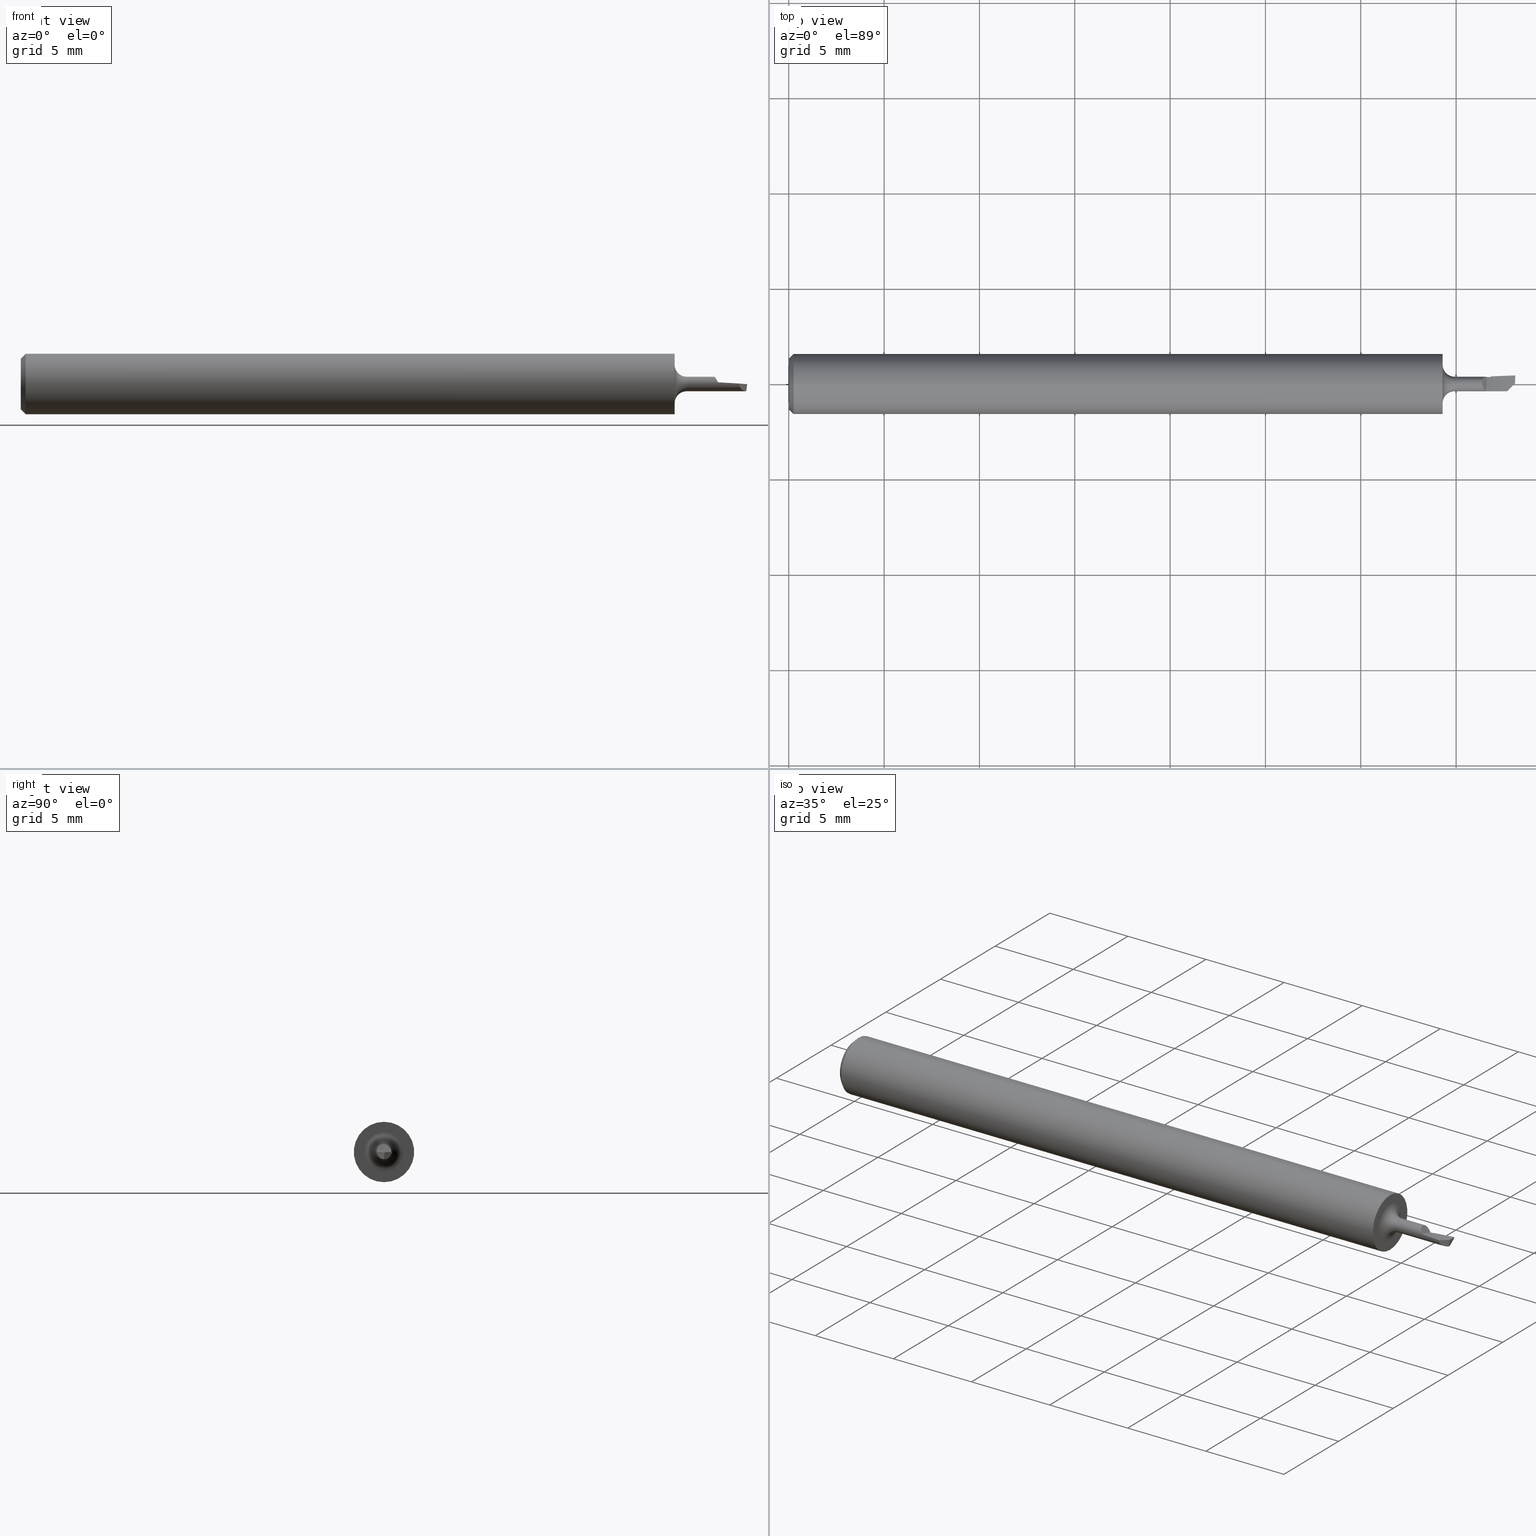
[diagram: canonical four-view strip — front | top / right | iso, engineering-drawing reading convention]
A machine part, canonical four-view strip (front | top / right | iso — engineering-drawing reading convention). The complete STEP part file that produces these views, byte-faithful:
ISO-10303-21;
HEADER;
FILE_DESCRIPTION (( 'STEP AP203' ),
    '1' );
FILE_NAME ('216309-HB035125.STEP',
    '2024-07-24T19:19:48',
    ( '' ),
    ( '' ),
    'SwSTEP 2.0',
    'SolidWorks 2024',
    '' );
FILE_SCHEMA (( 'CONFIG_CONTROL_DESIGN' ));
ENDSEC;

DATA;
#1 = CARTESIAN_POINT ( 'NONE',  ( 1.432524577694744394, 0.008916079825167743528, 0.01220787235223453823 ) ) ;
#2 = CARTESIAN_POINT ( 'NONE',  ( 1.499817992008509071, 0.001318262727252362881, -0.0003144444345051840978 ) ) ;
#3 = VERTEX_POINT ( 'NONE', #102 ) ;
#4 = DIRECTION ( 'NONE',  ( 0.000000000000000000, 0.000000000000000000, -1.000000000000000000 ) ) ;
#5 = DIRECTION ( 'NONE',  ( 0.000000000000000000, -0.2334453638559059185, -0.9723699203976764460 ) ) ;
#6 = ORIENTED_EDGE ( 'NONE', *, *, #701, .T. ) ;
#7 = CARTESIAN_POINT ( 'NONE',  ( 1.494370879842946032, -0.004128849438310073540, -0.0003551287029915260675 ) ) ;
#8 = CARTESIAN_POINT ( 'NONE',  ( 1.499569790963152904, 0.01580503994089963241, -0.003365405957946846546 ) ) ;
#9 = VECTOR ( 'NONE', #220, 39.37007874015748854 ) ;
#10 = CC_DESIGN_SECURITY_CLASSIFICATION ( #34, ( #635 ) ) ;
#11 = ORIENTED_EDGE ( 'NONE', *, *, #244, .F. ) ;
#12 = FACE_OUTER_BOUND ( 'NONE', #436, .T. ) ;
#13 = ORIENTED_EDGE ( 'NONE', *, *, #426, .T. ) ;
#14 = APPLICATION_PROTOCOL_DEFINITION ( 'international standard', 'config_control_design', 1994, #530 ) ;
#15 = CARTESIAN_POINT ( 'NONE',  ( 1.499741767034215689, 0.01658477173375924596, -0.002020243631700973774 ) ) ;
#16 = VERTEX_POINT ( 'NONE', #568 ) ;
#17 = EDGE_CURVE ( 'NONE', #413, #714, #174, .T. ) ;
#18 = DIRECTION ( 'NONE',  ( 0.000000000000000000, -0.6883545756937445859, -0.7253743710122965149 ) ) ;
#19 = EDGE_CURVE ( 'NONE', #495, #297, #685, .T. ) ;
#20 = AXIS2_PLACEMENT_3D ( 'NONE', #404, #540, #126 ) ;
#21 = EDGE_LOOP ( 'NONE', ( #210, #598, #534, #207, #444 ) ) ;
#22 = COORDINATED_UNIVERSAL_TIME_OFFSET ( 8, 0, .BEHIND. ) ;
#23 = CARTESIAN_POINT ( 'NONE',  ( 1.375000000000000222, 0.000000000000000000, 0.000000000000000000 ) ) ;
#24 = CARTESIAN_POINT ( 'NONE',  ( 1.248148148148148673, -0.04537493351759626370, 0.1035333754060629857 ) ) ;
#25 = ORIENTED_EDGE ( 'NONE', *, *, #65, .F. ) ;
#26 = CARTESIAN_POINT ( 'NONE',  ( 0.01000000000000000021, 0.000000000000000000, 0.000000000000000000 ) ) ;
#27 = VERTEX_POINT ( 'NONE', #113 ) ;
#28 = PERSON_AND_ORGANIZATION ( #269, #60 ) ;
#29 = DIRECTION ( 'NONE',  ( -0.7071067811865454633, 0.7071067811865495711, 0.000000000000000000 ) ) ;
#30 = PLANE ( 'NONE',  #498 ) ;
#31 = ADVANCED_FACE ( 'NONE', ( #400 ), #49, .F. ) ;
#32 = ORIENTED_EDGE ( 'NONE', *, *, #313, .F. ) ;
#33 = ADVANCED_FACE ( 'NONE', ( #458 ), #356, .F. ) ;
#34 = SECURITY_CLASSIFICATION ( '', '', #669 ) ;
#35 = ORIENTED_EDGE ( 'NONE', *, *, #689, .T. ) ;
#36 = CARTESIAN_POINT ( 'NONE',  ( 1.350000000000000311, 7.635672792683743590E-18, -0.06234999999999997489 ) ) ;
#37 = VERTEX_POINT ( 'NONE', #168 ) ;
#38 = COORDINATED_UNIVERSAL_TIME_OFFSET ( 8, 0, .BEHIND. ) ;
#39 = ADVANCED_FACE ( 'NONE', ( #89 ), #625, .T. ) ;
#40 = CARTESIAN_POINT ( 'NONE',  ( 1.431999999999999273, 0.004315100735487256700, 0.01421531127216820942 ) ) ;
#41 = CARTESIAN_POINT ( 'NONE',  ( 1.499483855044357439, 0.01541433301773257984, -0.004037503371795606033 ) ) ;
#42 = APPROVAL_ROLE ( '' ) ;
#43 = ADVANCED_FACE ( 'NONE', ( #442 ), #234, .T. ) ;
#44 = CARTESIAN_POINT ( 'NONE',  ( 1.350000000000000311, 4.898587196589413537E-18, -0.04000000000000000083 ) ) ;
#45 = CC_DESIGN_PERSON_AND_ORGANIZATION_ASSIGNMENT ( #152, #377, ( #396 ) ) ;
#46 = DIRECTION ( 'NONE',  ( 0.000000000000000000, 0.000000000000000000, 1.000000000000000000 ) ) ;
#47 = CARTESIAN_POINT ( 'NONE',  ( 1.450000000000000400, 0.01579589541770329286, -0.003397055682937657334 ) ) ;
#48 = CARTESIAN_POINT ( 'NONE',  ( 1.434748423254413652, -0.008616488997698195165, 0.01228048561823956962 ) ) ;
#49 = PLANE ( 'NONE',  #248 ) ;
#50 = CARTESIAN_POINT ( 'NONE',  ( 1.432000000000000162, 0.005704372090002725847, 0.01387300036253149259 ) ) ;
#51 = B_SPLINE_CURVE_WITH_KNOTS ( 'NONE', 3,
 ( #564, #145, #263, #435, #194, #428, #149, #383, #198, #147 ),
 .UNSPECIFIED., .F., .F.,
 ( 4, 3, 3, 4 ),
 ( 6.961787061663940775E-18, 0.0006369181891311796739, 0.0009554088573682942374, 0.001273908002081762091 ),
 .UNSPECIFIED. ) ;
#52 = CARTESIAN_POINT ( 'NONE',  ( 1.350000000000000311, 0.000000000000000000, 0.000000000000000000 ) ) ;
#53 = ADVANCED_FACE ( 'NONE', ( #723 ), #95, .F. ) ;
#54 = DIRECTION ( 'NONE',  ( 0.000000000000000000, 0.000000000000000000, 1.000000000000000000 ) ) ;
#55 = DIRECTION ( 'NONE',  ( 0.7071067811865461294, 8.659560562354950115E-17, 0.7071067811865489050 ) ) ;
#56 = AXIS2_PLACEMENT_3D ( 'NONE', #332, #519, #104 ) ;
#57 = CARTESIAN_POINT ( 'NONE',  ( 1.450000000000000178, 0.01465625742467678572, -0.003192822940358413641 ) ) ;
#58 = AXIS2_PLACEMENT_3D ( 'NONE', #222, #460, #595 ) ;
#59 = ORIENTED_EDGE ( 'NONE', *, *, #588, .F. ) ;
#60 = ORGANIZATION ( 'UNSPECIFIED', 'UNSPECIFIED', '' ) ;
#61 = CARTESIAN_POINT ( 'NONE',  ( 1.449999999999999734, 0.01503606013463798345, -0.003261340739999136779 ) ) ;
#62 = CARTESIAN_POINT ( 'NONE',  ( 1.450000000000000178, 0.01570618614870872634, -0.003770721680463313182 ) ) ;
#63 = ORIENTED_EDGE ( 'NONE', *, *, #527, .T. ) ;
#64 = CARTESIAN_POINT ( 'NONE',  ( 1.498003259551602628, 0.000000000000000000, -0.01500000000000003240 ) ) ;
#65 = EDGE_CURVE ( 'NONE', #718, #358, #51, .T. ) ;
#66 = CARTESIAN_POINT ( 'NONE',  ( 1.499867080414677867, 0.006795818085892544290, -0.0003039670993507347097 ) ) ;
#67 = ORIENTED_EDGE ( 'NONE', *, *, #76, .T. ) ;
#68 = CARTESIAN_POINT ( 'NONE',  ( 1.350000000000000311, 0.000000000000000000, 0.000000000000000000 ) ) ;
#69 = CC_DESIGN_PERSON_AND_ORGANIZATION_ASSIGNMENT ( #611, #387, ( #635 ) ) ;
#70 = AXIS2_PLACEMENT_3D ( 'NONE', #629, #581, #54 ) ;
#71 = ORIENTED_EDGE ( 'NONE', *, *, #175, .T. ) ;
#72 = CARTESIAN_POINT ( 'NONE',  ( 1.450000000000000178, 0.02737845434150402643, 0.04484777433942049862 ) ) ;
#73 = ORIENTED_EDGE ( 'NONE', *, *, #515, .F. ) ;
#74 = CARTESIAN_POINT ( 'NONE',  ( 0.01000000000000000021, 0.000000000000000000, 0.000000000000000000 ) ) ;
#75 = LINE ( 'NONE', #609, #572 ) ;
#76 = EDGE_CURVE ( 'NONE', #86, #150, #298, .T. ) ;
#77 =( BOUNDED_SURFACE ( )  B_SPLINE_SURFACE ( 3, 2, ( 
 ( #365, #602, #312, #549, #24 ),
 ( #253, #490, #717, #388, #453 ),
 ( #209, #617, #503, #399, #403 ),
 ( #734, #628, #161, #212, #155 ) ),
 .UNSPECIFIED., .F., .F., .T. ) 
 B_SPLINE_SURFACE_WITH_KNOTS ( ( 4, 4 ),
 ( 3, 2, 3 ),
 ( 0.000000000000000000, 1.000000000000000000 ),
 ( 0.000000000000000000, 0.5000000000000000000, 1.000000000000000000 ),
 .UNSPECIFIED. ) 
 GEOMETRIC_REPRESENTATION_ITEM ( )  RATIONAL_B_SPLINE_SURFACE ( (
 ( 1.000000000000000000, 0.9659258262890683122, 1.000000000000000000, 0.9659258262890683122, 1.000000000000000000),
 ( 0.9829519941216796619, 0.9494587171244708301, 0.9829519941216796619, 0.9494587171244708301, 0.9829519941216796619),
 ( 0.9829519941216796619, 0.9494587171244708301, 0.9829519941216796619, 0.9494587171244708301, 0.9829519941216796619),
 ( 1.000000000000000000, 0.9659258262890683122, 1.000000000000000000, 0.9659258262890683122, 1.000000000000000000) ) ) 
 REPRESENTATION_ITEM ( '' )  SURFACE ( )  );
#78 = DIRECTION ( 'NONE',  ( -1.000000000000000000, -0.000000000000000000, -0.000000000000000000 ) ) ;
#79 = CARTESIAN_POINT ( 'NONE',  ( 1.489006497426780484, -0.009493231854475901038, -0.01469183813165527916 ) ) ;
#80 = AXIS2_PLACEMENT_3D ( 'NONE', #619, #29, #103 ) ;
#81 = ORIENTED_EDGE ( 'NONE', *, *, #576, .T. ) ;
#82 = CARTESIAN_POINT ( 'NONE',  ( 1.471565959021651437, 0.001947061599036949316, -0.01500000000000004455 ) ) ;
#83 = APPROVAL_PERSON_ORGANIZATION ( #211, #475, #390 ) ;
#84 = DIRECTION ( 'NONE',  ( 0.000000000000000000, 0.000000000000000000, 1.000000000000000000 ) ) ;
#85 = CARTESIAN_POINT ( 'NONE',  ( 1.450000000000000178, 0.01570618614870872634, -0.003770721680463313182 ) ) ;
#86 = VERTEX_POINT ( 'NONE', #36 ) ;
#87 = ADVANCED_FACE ( 'NONE', ( #554 ), #558, .T. ) ;
#88 = LINE ( 'NONE', #651, #743 ) ;
#89 = FACE_OUTER_BOUND ( 'NONE', #283, .T. ) ;
#90 = ORIENTED_EDGE ( 'NONE', *, *, #163, .F. ) ;
#91 = DIRECTION ( 'NONE',  ( 1.000000000000000000, 0.000000000000000000, 0.000000000000000000 ) ) ;
#92 = ORIENTED_EDGE ( 'NONE', *, *, #302, .F. ) ;
#93 = CONICAL_SURFACE ( 'NONE', #117, 0.06235000000000000264, 0.7853981633974502774 ) ;
#94 = VECTOR ( 'NONE', #110, 39.37007874015748854 ) ;
#95 = PLANE ( 'NONE',  #275 ) ;
#96 = DIMENSIONAL_EXPONENTS ( 1.000000000000000000, 0.000000000000000000, 0.000000000000000000, 0.000000000000000000, 0.000000000000000000, 0.000000000000000000, 0.000000000000000000 ) ;
#97 = ORIENTED_EDGE ( 'NONE', *, *, #208, .T. ) ;
#98 = PERSON_AND_ORGANIZATION_ROLE ( 'classification_officer' ) ;
#99 = ADVANCED_FACE ( 'NONE', ( #371, #713 ), #30, .T. ) ;
#100 = CARTESIAN_POINT ( 'NONE',  ( 1.498040609014625435, 0.004279824550830217157, -0.01500000000000003240 ) ) ;
#101 = EDGE_CURVE ( 'NONE', #413, #183, #386, .T. ) ;
#102 = CARTESIAN_POINT ( 'NONE',  ( 1.450000000000000178, 0.01465625742467678572, -0.003192822940358413641 ) ) ;
#103 = DIRECTION ( 'NONE',  ( -0.7071067811865495711, -0.7071067811865454633, 0.000000000000000000 ) ) ;
#104 = DIRECTION ( 'NONE',  ( 0.000000000000000000, -1.776356839400250465E-15, -1.000000000000000000 ) ) ;
#105 = CARTESIAN_POINT ( 'NONE',  ( 0.000000000000000000, 0.000000000000000000, 0.000000000000000000 ) ) ;
#106 = CARTESIAN_POINT ( 'NONE',  ( 1.452880678092315803, 8.503677226371912974E-19, -0.01500000000000003240 ) ) ;
#107 = VECTOR ( 'NONE', #510, 39.37007874015748143 ) ;
#108 = CARTESIAN_POINT ( 'NONE',  ( 1.497999920531684737, -0.0004998087495719157362, -0.01499167072790263261 ) ) ;
#109 = ORIENTED_EDGE ( 'NONE', *, *, #461, .T. ) ;
#110 = DIRECTION ( 'NONE',  ( 0.1220122463319275319, 0.1220122463319268102, 0.9850005195379716305 ) ) ;
#111 = ADVANCED_FACE ( 'NONE', ( #652 ), #77, .T. ) ;
#112 = CARTESIAN_POINT ( 'NONE',  ( 1.498999930842132455, 0.01172791227887334115, -0.007716598154187020650 ) ) ;
#113 = CARTESIAN_POINT ( 'NONE',  ( 1.432000000000000162, 0.005704372090002725847, 0.01387300036253149259 ) ) ;
#114 = CARTESIAN_POINT ( 'NONE',  ( 1.434676559784486605, 0.01284527235986491697, 0.007772958168106094100 ) ) ;
#115 = CARTESIAN_POINT ( 'NONE',  ( 0.000000000000000000, 0.000000000000000000, 0.000000000000000000 ) ) ;
#116 = LINE ( 'NONE', #395, #483 ) ;
#117 = AXIS2_PLACEMENT_3D ( 'NONE', #26, #605, #335 ) ;
#118 = LINE ( 'NONE', #357, #644 ) ;
#119 = LOCAL_TIME ( 12, 19, 48.00000000000000000, #505 ) ;
#120 = CARTESIAN_POINT ( 'NONE',  ( 1.498001805293502242, -0.0001666414726750670616, -0.01500000000000003414 ) ) ;
#121 = PRODUCT ( '216309-HB035125', '216309-HB035125', '', ( #185 ) ) ;
#122 = EDGE_CURVE ( 'NONE', #474, #221, #261, .T. ) ;
#123 = CARTESIAN_POINT ( 'NONE',  ( 1.431999999999999273, 0.009167994614909172682, 0.01289375081975082694 ) ) ;
#124 = EDGE_LOOP ( 'NONE', ( #709, #265, #512, #544, #32 ) ) ;
#125 = CARTESIAN_POINT ( 'NONE',  ( 1.462218841381619061, 0.001017463492374664396, -0.01500000000000004455 ) ) ;
#126 = DIRECTION ( 'NONE',  ( 0.000000000000000000, 0.000000000000000000, -1.000000000000000000 ) ) ;
#127 = ORIENTED_EDGE ( 'NONE', *, *, #229, .F. ) ;
#128 = CARTESIAN_POINT ( 'NONE',  ( 1.492331929362829213, 0.003809428644459853224, -0.01500000000000002547 ) ) ;
#129 = CARTESIAN_POINT ( 'NONE',  ( 1.499927643291884216, 0.01227306668936207351, -0.0002000194475333547865 ) ) ;
#130 = ORIENTED_EDGE ( 'NONE', *, *, #289, .F. ) ;
#131 = CARTESIAN_POINT ( 'NONE',  ( 1.452880678092315803, 8.503677226371912974E-19, -0.01500000000000003240 ) ) ;
#132 = CARTESIAN_POINT ( 'NONE',  ( 1.441815287077816032, 0.01664416239972313707, -0.004132763306264236429 ) ) ;
#133 = ORIENTED_EDGE ( 'NONE', *, *, #244, .T. ) ;
#134 = APPROVAL_ROLE ( '' ) ;
#135 = PLANE ( 'NONE',  #239 ) ;
#136 = CARTESIAN_POINT ( 'NONE',  ( 1.483529953433142312, -0.01496977584811420847, 0.0009517410662661074904 ) ) ;
#137 = ORIENTED_EDGE ( 'NONE', *, *, #426, .F. ) ;
#138 = CARTESIAN_POINT ( 'NONE',  ( 1.466892431044587441, 0.001482265613127337718, -0.01500000000000004455 ) ) ;
#139 = CARTESIAN_POINT ( 'NONE',  ( 0.01000000000000000021, 0.000000000000000000, -0.06235000000000000264 ) ) ;
#140 = DIRECTION ( 'NONE',  ( 1.000000000000000000, 0.000000000000000000, -0.000000000000000000 ) ) ;
#141 = CIRCLE ( 'NONE', #285, 0.05234999999999996600 ) ;
#142 = ORIENTED_EDGE ( 'NONE', *, *, #531, .F. ) ;
#143 = DATE_AND_TIME ( #272, #686 ) ;
#144 = DIRECTION ( 'NONE',  ( -0.9925083585251990304, 0.008661489226063941518, 0.1218693434051474900 ) ) ;
#145 = CARTESIAN_POINT ( 'NONE',  ( 1.491670180288191094, 0.01748385899951591937, -0.0006386721332758280500 ) ) ;
#146 = ORIENTED_EDGE ( 'NONE', *, *, #163, .T. ) ;
#147 = CARTESIAN_POINT ( 'NONE',  ( 1.450000000000000400, 0.01579589541770329286, -0.003397055682937657334 ) ) ;
#148 = ORIENTED_EDGE ( 'NONE', *, *, #378, .T. ) ;
#149 = CARTESIAN_POINT ( 'NONE',  ( 1.462503833284643839, 0.01634450912935297637, -0.002627626568234734967 ) ) ;
#150 = VERTEX_POINT ( 'NONE', #167 ) ;
#151 = EDGE_CURVE ( 'NONE', #410, #385, #647, .T. ) ;
#152 = PERSON_AND_ORGANIZATION ( #269, #60 ) ;
#153 = AXIS2_PLACEMENT_3D ( 'NONE', #680, #190, #84 ) ;
#154 = EDGE_CURVE ( 'NONE', #230, #37, #696, .T. ) ;
#155 = CARTESIAN_POINT ( 'NONE',  ( 1.248148148148148673, 0.06697506648240339477, -0.09106253282430017137 ) ) ;
#156 = CALENDAR_DATE ( 2024, 24, 7 ) ;
#157 = DIRECTION ( 'NONE',  ( -1.000000000000000000, -0.000000000000000000, -0.000000000000000000 ) ) ;
#158 = DIRECTION ( 'NONE',  ( 0.000000000000000000, 0.000000000000000000, 1.000000000000000000 ) ) ;
#159 = CARTESIAN_POINT ( 'NONE',  ( 1.483529953433142312, -0.01496977584811420674, 0.0009517410662661074904 ) ) ;
#160 = DIRECTION ( 'NONE',  ( 0.1218739150664907706, 0.000000000000000000, 0.9925455903012041503 ) ) ;
#161 = CARTESIAN_POINT ( 'NONE',  ( 1.374074074074074447, 0.1035333754060631106, -0.04537493351759654819 ) ) ;
#162 = CARTESIAN_POINT ( 'NONE',  ( 1.432154095382581094, 0.007345397281493290520, 0.01319823560821376494 ) ) ;
#163 = EDGE_CURVE ( 'NONE', #638, #616, #264, .T. ) ;
#164 = CLOSED_SHELL ( 'NONE', ( #506, #39, #218, #517, #87, #111, #177, #657, #31, #392, #99, #33, #325, #679, #362, #43, #300, #53, #379, #502 ) ) ;
#165 = EDGE_CURVE ( 'NONE', #27, #16, #667, .T. ) ;
#166 =( GEOMETRIC_REPRESENTATION_CONTEXT ( 3 ) GLOBAL_UNCERTAINTY_ASSIGNED_CONTEXT ( ( #291 ) ) GLOBAL_UNIT_ASSIGNED_CONTEXT ( ( #650, #256, #414 ) ) REPRESENTATION_CONTEXT ( 'NONE', 'WORKASPACE' ) );
#167 = CARTESIAN_POINT ( 'NONE',  ( 1.350000000000000311, 0.000000000000000000, 0.06234999999999997489 ) ) ;
#168 = CARTESIAN_POINT ( 'NONE',  ( 1.450000000000000178, 1.836970198721033832E-18, -0.01500000000000003240 ) ) ;
#169 = CARTESIAN_POINT ( 'NONE',  ( 1.435394890187201788, 0.01353439872834010654, 0.006468021686865220096 ) ) ;
#170 = CARTESIAN_POINT ( 'NONE',  ( 1.499817992008509071, 0.001318262727252362881, -0.0003144444345051840978 ) ) ;
#171 = ORIENTED_EDGE ( 'NONE', *, *, #378, .F. ) ;
#172 = DIRECTION ( 'NONE',  ( 0.000000000000000000, -1.000000000000000000, 0.000000000000000000 ) ) ;
#173 = CARTESIAN_POINT ( 'NONE',  ( 1.483333295850198130, 0.01721749227826472814, -0.001394084887595503251 ) ) ;
#174 =( BOUNDED_CURVE ( )  B_SPLINE_CURVE ( 2, ( #159, #213, #451 ),
 .UNSPECIFIED., .F., .T. ) 
 B_SPLINE_CURVE_WITH_KNOTS ( ( 3, 3 ),
 ( 0.06685295215275328939, 0.2391423232656095799 ),
 .UNSPECIFIED. ) 
 CURVE ( )  GEOMETRIC_REPRESENTATION_ITEM ( )  RATIONAL_B_SPLINE_CURVE ( ( 0.9796418532850701411, 0.9711484298156725092, 0.9706449062946386208 ) ) 
 REPRESENTATION_ITEM ( '' )  );
#175 = EDGE_CURVE ( 'NONE', #714, #528, #693, .T. ) ;
#176 = CARTESIAN_POINT ( 'NONE',  ( 1.434355016187260690, 0.01244720860350104555, 0.008384505415445220322 ) ) ;
#177 = ADVANCED_FACE ( 'NONE', ( #462 ), #624, .T. ) ;
#178 = VECTOR ( 'NONE', #257, 39.37007874015748143 ) ;
#179 = CARTESIAN_POINT ( 'NONE',  ( 1.432000000000000384, -0.01178763634953078170, 0.01857638937384338898 ) ) ;
#180 = VERTEX_POINT ( 'NONE', #684 ) ;
#181 = CARTESIAN_POINT ( 'NONE',  ( 1.500000000000000222, 0.01544059892324156635, -0.004000000000000000083 ) ) ;
#182 = PLANE ( 'NONE',  #546 ) ;
#183 = VERTEX_POINT ( 'NONE', #108 ) ;
#184 = DIRECTION ( 'NONE',  ( 1.000000000000000000, 0.000000000000000000, 0.000000000000000000 ) ) ;
#185 = MECHANICAL_CONTEXT ( 'NONE', #530, 'mechanical' ) ;
#186 = EDGE_CURVE ( 'NONE', #230, #331, #571, .T. ) ;
#187 = CARTESIAN_POINT ( 'NONE',  ( 1.500000000000000222, 0.01774999999999999842, 0.000000000000000000 ) ) ;
#188 = VERTEX_POINT ( 'NONE', #170 ) ;
#189 = CARTESIAN_POINT ( 'NONE',  ( 1.432172176270925856, -4.678262273295208351E-06, 0.01500437916576863838 ) ) ;
#190 = DIRECTION ( 'NONE',  ( -1.000000000000000000, -0.000000000000000000, -0.000000000000000000 ) ) ;
#191 = DIRECTION ( 'NONE',  ( 0.000000000000000000, 0.000000000000000000, -1.000000000000000000 ) ) ;
#192 = CARTESIAN_POINT ( 'NONE',  ( 1.498040609014625435, 0.004279824550830217157, -0.01500000000000003240 ) ) ;
#193 = CYLINDRICAL_SURFACE ( 'NONE', #615, 0.01500000000000003240 ) ;
#194 = CARTESIAN_POINT ( 'NONE',  ( 1.470838647923419895, 0.01669205295984558385, -0.002088525250491845078 ) ) ;
#195 = ORIENTED_EDGE ( 'NONE', *, *, #76, .F. ) ;
#196 = APPROVAL_STATUS ( 'not_yet_approved' ) ;
#197 = FACE_OUTER_BOUND ( 'NONE', #342, .T. ) ;
#198 = CARTESIAN_POINT ( 'NONE',  ( 1.454168208634442072, 0.01598458895740040644, -0.003149236589443986378 ) ) ;
#199 = CIRCLE ( 'NONE', #153, 0.01500000000000006189 ) ;
#200 = ORIENTED_EDGE ( 'NONE', *, *, #422, .F. ) ;
#201 = APPROVAL ( #481, 'UNSPECIFIED' ) ;
#202 = DIRECTION ( 'NONE',  ( 0.7071067811865461294, 0.000000000000000000, -0.7071067811865489050 ) ) ;
#203 = DIRECTION ( 'NONE',  ( 1.000000000000000000, 0.000000000000000000, 0.000000000000000000 ) ) ;
#204 = ORIENTED_EDGE ( 'NONE', *, *, #17, .T. ) ;
#205 = SHAPE_DEFINITION_REPRESENTATION ( #532, #583 ) ;
#206 = CARTESIAN_POINT ( 'NONE',  ( 1.466666689866947593, 0.02437390749460837530, 0.04687376477503336913 ) ) ;
#207 = ORIENTED_EDGE ( 'NONE', *, *, #287, .F. ) ;
#208 = EDGE_CURVE ( 'NONE', #3, #230, #348, .T. ) ;
#209 = CARTESIAN_POINT ( 'NONE',  ( 1.500000000000000000, 0.03809952085550589312, -0.004651082090701282382 ) ) ;
#210 = ORIENTED_EDGE ( 'NONE', *, *, #122, .F. ) ;
#211 = PERSON_AND_ORGANIZATION ( #269, #60 ) ;
#212 = CARTESIAN_POINT ( 'NONE',  ( 1.311111111111111560, 0.09137519861340723248, -0.07311661784731943170 ) ) ;
#213 = CARTESIAN_POINT ( 'NONE',  ( 1.461876997276741141, -0.01488347263640628707, 0.002309189830464666773 ) ) ;
#214 = B_SPLINE_CURVE_WITH_KNOTS ( 'NONE', 3,
 ( #50, #162, #1, #742, #278, #176, #114, #219, #627, #169, #467, #284, #573, #522, #227, #682 ),
 .UNSPECIFIED., .F., .F.,
 ( 4, 2, 2, 1, 1, 2, 2, 2, 4 ),
 ( 0.000000000000000000, 0.2500000000002108869, 0.3750000000003111955, 0.4375000000003676504, 0.4687500000003958500, 0.4843750000004031220, 0.5000000000004103384, 0.7500000000002050582, 1.000000000000000000 ),
 .UNSPECIFIED. ) ;
#215 = CARTESIAN_POINT ( 'NONE',  ( 1.441060851085619099, 0.004754553304358863537, -0.001618517271110802083 ) ) ;
#216 = CARTESIAN_POINT ( 'NONE',  ( 1.434984216994093176, -0.009088010973428166731, 0.01193446089333989428 ) ) ;
#217 = ORIENTED_EDGE ( 'NONE', *, *, #496, .F. ) ;
#218 = ADVANCED_FACE ( 'NONE', ( #729 ), #445, .T. ) ;
#219 = CARTESIAN_POINT ( 'NONE',  ( 1.435087202012115926, 0.01325970702525492220, 0.007020425083616442172 ) ) ;
#220 = DIRECTION ( 'NONE',  ( 0.000000000000000000, -0.6883545756937445859, -0.7253743710122965149 ) ) ;
#221 = VERTEX_POINT ( 'NONE', #393 ) ;
#222 = CARTESIAN_POINT ( 'NONE',  ( 0.000000000000000000, 0.000000000000000000, 0.000000000000000000 ) ) ;
#223 = AXIS2_PLACEMENT_3D ( 'NONE', #115, #688, #158 ) ;
#224 = LOCAL_TIME ( 12, 19, 48.00000000000000000, #38 ) ;
#225 = CARTESIAN_POINT ( 'NONE',  ( 1.436168963713212010, -0.01131927870988028509, 0.01016358373328374136 ) ) ;
#226 = ORIENTED_EDGE ( 'NONE', *, *, #165, .F. ) ;
#227 = CARTESIAN_POINT ( 'NONE',  ( 1.440076498981662567, 0.01515863179251153957, -0.001250485095635841442 ) ) ;
#228 = CARTESIAN_POINT ( 'NONE',  ( 1.499677258270290636, 0.01629265915005565987, -0.002524844343239127271 ) ) ;
#229 = EDGE_CURVE ( 'NONE', #385, #410, #311, .T. ) ;
#230 = VERTEX_POINT ( 'NONE', #597 ) ;
#231 = B_SPLINE_CURVE_WITH_KNOTS ( 'NONE', 3,
 ( #405, #586, #636, #518 ),
 .UNSPECIFIED., .F., .F.,
 ( 4, 4 ),
 ( 0.01032287543554295632, 1.000000000000000000 ),
 .UNSPECIFIED. ) ;
#232 = DIRECTION ( 'NONE',  ( 0.000000000000000000, -1.224646799147352961E-16, 1.000000000000000000 ) ) ;
#233 = EDGE_CURVE ( 'NONE', #150, #86, #708, .T. ) ;
#234 = B_SPLINE_SURFACE_WITH_KNOTS ( 'NONE', 1, 3, ( 
 ( #266, #720, #206, #439 ),
 ( #606, #666, #380, #85 ) ),
 .UNSPECIFIED., .F., .F., .F.,
 ( 2, 2 ),
 ( 4, 4 ),
 ( 0.000000000000000000, 1.000000000000000000 ),
 ( 0.000000000000000000, 1.000000000000000000 ),
 .UNSPECIFIED. ) ;
#235 = DIRECTION ( 'NONE',  ( -1.000000000000000000, -0.000000000000000000, -0.000000000000000000 ) ) ;
#236 = APPROVAL ( #196, 'UNSPECIFIED' ) ;
#237 = EDGE_LOOP ( 'NONE', ( #417, #271, #454, #303, #13, #509, #520 ) ) ;
#238 = CARTESIAN_POINT ( 'NONE',  ( 1.498000692183840021, -0.0003332598103747386967, -0.01499722331897492683 ) ) ;
#239 = AXIS2_PLACEMENT_3D ( 'NONE', #307, #144, #160 ) ;
#240 = CARTESIAN_POINT ( 'NONE',  ( 1.499870841127556975, 0.01716807661838471583, -0.001010516130935247819 ) ) ;
#241 = EDGE_LOOP ( 'NONE', ( #429, #328, #63 ) ) ;
#242 = DIRECTION ( 'NONE',  ( 0.000000000000000000, 0.000000000000000000, 1.000000000000000000 ) ) ;
#243 = CARTESIAN_POINT ( 'NONE',  ( 1.499935406509993241, 0.01745926915505917332, -0.0005053889266656616920 ) ) ;
#244 = EDGE_CURVE ( 'NONE', #358, #180, #473, .T. ) ;
#245 = CARTESIAN_POINT ( 'NONE',  ( 0.000000000000000000, 0.000000000000000000, 0.000000000000000000 ) ) ;
#246 = ORIENTED_EDGE ( 'NONE', *, *, #633, .F. ) ;
#247 = CARTESIAN_POINT ( 'NONE',  ( 1.466666680332581407, 0.01360389526960980970, -0.006261539296030255858 ) ) ;
#248 = AXIS2_PLACEMENT_3D ( 'NONE', #105, #516, #741 ) ;
#249 = B_SPLINE_CURVE_WITH_KNOTS ( 'NONE', 3,
 ( #187, #421, #640, #705 ),
 .UNSPECIFIED., .F., .F.,
 ( 4, 4 ),
 ( 0.000000000000000000, 1.000000000000000000 ),
 .UNSPECIFIED. ) ;
#250 = ORIENTED_EDGE ( 'NONE', *, *, #122, .T. ) ;
#251 = CALENDAR_DATE ( 2024, 24, 7 ) ;
#252 = FACE_OUTER_BOUND ( 'NONE', #423, .T. ) ;
#253 = CARTESIAN_POINT ( 'NONE',  ( 1.500000000000000000, -0.03809952085550569190, -0.004651082090701197380 ) ) ;
#254 = EDGE_CURVE ( 'NONE', #718, #188, #425, .T. ) ;
#255 = EDGE_LOOP ( 'NONE', ( #142, #92, #109, #35 ) ) ;
#256 =( NAMED_UNIT ( * ) PLANE_ANGLE_UNIT ( ) SI_UNIT ( $, .RADIAN. ) );
#257 = DIRECTION ( 'NONE',  ( -1.000000000000000000, -0.000000000000000000, -0.000000000000000000 ) ) ;
#258 = CC_DESIGN_DATE_AND_TIME_ASSIGNMENT ( #260, #660, ( #34 ) ) ;
#259 = ORIENTED_EDGE ( 'NONE', *, *, #287, .T. ) ;
#260 = DATE_AND_TIME ( #725, #224 ) ;
#261 = B_SPLINE_CURVE_WITH_KNOTS ( 'NONE', 3,
 ( #100, #580, #112, #341 ),
 .UNSPECIFIED., .F., .F.,
 ( 4, 4 ),
 ( 3.859803836814941223E-06, 0.0004024347465629882041 ),
 .UNSPECIFIED. ) ;
#262 = CARTESIAN_POINT ( 'NONE',  ( 1.483529953433142312, -0.01496977584811420847, 0.0009517410662661074904 ) ) ;
#263 = CARTESIAN_POINT ( 'NONE',  ( 1.483338472120199203, 0.01718350019533923523, -0.001240022781338080736 ) ) ;
#264 = CIRCLE ( 'NONE', #672, 0.05234999999999996600 ) ;
#265 = ORIENTED_EDGE ( 'NONE', *, *, #574, .T. ) ;
#266 = CARTESIAN_POINT ( 'NONE',  ( 1.500000000000000222, 0.01774999999999999842, 0.04999999999999999584 ) ) ;
#267 = EDGE_LOOP ( 'NONE', ( #600, #67 ) ) ;
#268 = EDGE_CURVE ( 'NONE', #221, #718, #489, .T. ) ;
#269 = PERSON ( 'UNSPECIFIED', 'UNSPECIFIED', 'UNSPECIFIED', ('UNSPECIFIED'), ('UNSPECIFIED'), ('UNSPECIFIED') ) ;
#270 = DIRECTION ( 'NONE',  ( 0.000000000000000000, 0.000000000000000000, 1.000000000000000000 ) ) ;
#271 = ORIENTED_EDGE ( 'NONE', *, *, #65, .T. ) ;
#272 = CALENDAR_DATE ( 2024, 24, 7 ) ;
#273 = CARTESIAN_POINT ( 'NONE',  ( 1.435048143572537960, -0.009211310455438185760, 0.01183963071279975875 ) ) ;
#274 = ORIENTED_EDGE ( 'NONE', *, *, #565, .T. ) ;
#275 = AXIS2_PLACEMENT_3D ( 'NONE', #670, #500, #140 ) ;
#276 = CARTESIAN_POINT ( 'NONE',  ( 1.452880678092315803, 8.503677226371912974E-19, -0.01500000000000003240 ) ) ;
#277 = DIRECTION ( 'NONE',  ( -1.000000000000000000, -0.000000000000000000, -0.000000000000000000 ) ) ;
#278 = CARTESIAN_POINT ( 'NONE',  ( 1.433752509599511393, 0.01160010221633925483, 0.009558732180225612551 ) ) ;
#279 = CARTESIAN_POINT ( 'NONE',  ( 1.434474952013649274, -0.008038547935960566049, 0.01267274973122379904 ) ) ;
#280 = ORIENTED_EDGE ( 'NONE', *, *, #363, .T. ) ;
#281 = CYLINDRICAL_SURFACE ( 'NONE', #58, 0.06234999999999997489 ) ;
#282 = DIRECTION ( 'NONE',  ( -1.000000000000000000, -0.000000000000000000, -0.000000000000000000 ) ) ;
#283 = EDGE_LOOP ( 'NONE', ( #90, #555, #352, #373 ) ) ;
#284 = CARTESIAN_POINT ( 'NONE',  ( 1.435969324519953405, 0.01400123832682336270, 0.005451905998595057284 ) ) ;
#285 = AXIS2_PLACEMENT_3D ( 'NONE', #245, #235, #695 ) ;
#286 = CIRCLE ( 'NONE', #327, 0.02499999999999993894 ) ;
#287 = EDGE_CURVE ( 'NONE', #331, #524, #118, .T. ) ;
#288 = CARTESIAN_POINT ( 'NONE',  ( 1.500000000000000222, 0.01774999999999999842, 0.000000000000000000 ) ) ;
#289 = EDGE_CURVE ( 'NONE', #37, #524, #326, .T. ) ;
#290 = CARTESIAN_POINT ( 'NONE',  ( 0.000000000000000000, 7.023349393110068342E-18, 0.05234999999999996600 ) ) ;
#291 = UNCERTAINTY_MEASURE_WITH_UNIT (LENGTH_MEASURE( 1.000000000000000082E-05 ), #650, 'distance_accuracy_value', 'NONE');
#292 = CARTESIAN_POINT ( 'NONE',  ( 1.450000000000000178, 0.01252681255211120052, -0.007121082387400925508 ) ) ;
#293 = ORIENTED_EDGE ( 'NONE', *, *, #631, .F. ) ;
#294 = CARTESIAN_POINT ( 'NONE',  ( 1.449999999999999734, 0.01541593963651801194, -0.003329418346020903991 ) ) ;
#295 = B_SPLINE_SURFACE_WITH_KNOTS ( 'NONE', 1, 3, ( 
 ( #692, #173, #349, #62 ),
 ( #427, #599, #247, #656 ) ),
 .UNSPECIFIED., .F., .F., .F.,
 ( 2, 2 ),
 ( 4, 4 ),
 ( 0.000000000000000000, 1.000000000000000000 ),
 ( 0.000000000000000000, 1.000000000000000000 ),
 .UNSPECIFIED. ) ;
#296 = CARTESIAN_POINT ( 'NONE',  ( 1.350000000000000311, 0.000000000000000000, 0.000000000000000000 ) ) ;
#297 = VERTEX_POINT ( 'NONE', #537 ) ;
#298 = CIRCLE ( 'NONE', #406, 0.06234999999999997489 ) ;
#299 = CARTESIAN_POINT ( 'NONE',  ( 1.375000000000000222, 1.836970198721037299E-18, -0.01500000000000006189 ) ) ;
#300 = ADVANCED_FACE ( 'NONE', ( #468 ), #182, .T. ) ;
#301 = AXIS2_PLACEMENT_3D ( 'NONE', #309, #242, #430 ) ;
#302 = EDGE_CURVE ( 'NONE', #616, #638, #141, .T. ) ;
#303 = ORIENTED_EDGE ( 'NONE', *, *, #344, .F. ) ;
#304 = DIRECTION ( 'NONE',  ( 0.000000000000000000, 0.000000000000000000, 1.000000000000000000 ) ) ;
#305 = ORIENTED_EDGE ( 'NONE', *, *, #642, .T. ) ;
#306 = B_SPLINE_CURVE_WITH_KNOTS ( 'NONE', 3,
 ( #189, #359, #424, #604 ),
 .UNSPECIFIED., .F., .F.,
 ( 4, 4 ),
 ( 0.9328837035472568040, 1.000000000000000000 ),
 .UNSPECIFIED. ) ;
#307 = CARTESIAN_POINT ( 'NONE',  ( 1.500000000000000222, 0.01774999999999999842, 0.000000000000000000 ) ) ;
#308 = ORIENTED_EDGE ( 'NONE', *, *, #313, .T. ) ;
#309 = CARTESIAN_POINT ( 'NONE',  ( 0.000000000000000000, 0.000000000000000000, 0.000000000000000000 ) ) ;
#310 = DIRECTION ( 'NONE',  ( 0.000000000000000000, 0.000000000000000000, 1.000000000000000000 ) ) ;
#311 = CIRCLE ( 'NONE', #370, 0.04000000000000000083 ) ;
#312 = CARTESIAN_POINT ( 'NONE',  ( 1.374074074074074447, -0.09106253282429986606, 0.06697506648240343641 ) ) ;
#313 = EDGE_CURVE ( 'NONE', #718, #180, #249, .T. ) ;
#314 = VERTEX_POINT ( 'NONE', #354 ) ;
#315 = CARTESIAN_POINT ( 'NONE',  ( 1.483332983595526677, -0.06990980842883982860, -0.07740900346876655735 ) ) ;
#316 = FACE_OUTER_BOUND ( 'NONE', #255, .T. ) ;
#317 = DIRECTION ( 'NONE',  ( 0.000000000000000000, 0.000000000000000000, -1.000000000000000000 ) ) ;
#318 = ORIENTED_EDGE ( 'NONE', *, *, #655, .F. ) ;
#319 = COORDINATED_UNIVERSAL_TIME_OFFSET ( 8, 0, .BEHIND. ) ;
#320 = CARTESIAN_POINT ( 'NONE',  ( 1.439818867927536106, -0.01455439994882547911, 0.003628972599735321141 ) ) ;
#321 = CARTESIAN_POINT ( 'NONE',  ( 1.450000000000000400, 0.01499999999999999944, 0.000000000000000000 ) ) ;
#322 = VERTEX_POINT ( 'NONE', #299 ) ;
#323 = PERSON_AND_ORGANIZATION ( #269, #60 ) ;
#324 = CARTESIAN_POINT ( 'NONE',  ( 1.482959009056721733, -0.01554072022453469905, -0.008028547417331112837 ) ) ;
#325 = ADVANCED_FACE ( 'NONE', ( #12 ), #409, .T. ) ;
#326 = CIRCLE ( 'NONE', #20, 0.01500000000000003240 ) ;
#327 = AXIS2_PLACEMENT_3D ( 'NONE', #591, #694, #232 ) ;
#328 = ORIENTED_EDGE ( 'NONE', *, *, #655, .T. ) ;
#329 = LOCAL_TIME ( 12, 19, 48.00000000000000000, #382 ) ;
#330 = DIRECTION ( 'NONE',  ( 0.000000000000000000, 0.000000000000000000, -1.000000000000000000 ) ) ;
#331 = VERTEX_POINT ( 'NONE', #292 ) ;
#332 = CARTESIAN_POINT ( 'NONE',  ( 1.450000000000000178, 0.000000000000000000, 0.000000000000000000 ) ) ;
#333 = ORIENTED_EDGE ( 'NONE', *, *, #101, .F. ) ;
#334 = DATE_AND_TIME ( #156, #119 ) ;
#335 = DIRECTION ( 'NONE',  ( 0.000000000000000000, 0.000000000000000000, -1.000000000000000000 ) ) ;
#336 = CARTESIAN_POINT ( 'NONE',  ( 1.434860371873332374, -0.008843257154775460011, 0.01211693456127922036 ) ) ;
#337 = VECTOR ( 'NONE', #634, 39.37007874015748143 ) ;
#338 = CARTESIAN_POINT ( 'NONE',  ( 1.499817992008509071, 0.001318262727252362881, -0.0003144444345051840978 ) ) ;
#339 = DIRECTION ( 'NONE',  ( 0.000000000000000000, 0.000000000000000000, 1.000000000000000000 ) ) ;
#340 = CARTESIAN_POINT ( 'NONE',  ( 1.450000000000000178, -0.0003246776874453487422, -0.01499648573497391196 ) ) ;
#341 = CARTESIAN_POINT ( 'NONE',  ( 1.499483855044357439, 0.01541433301773257984, -0.004037503371795606033 ) ) ;
#342 = EDGE_LOOP ( 'NONE', ( #491, #440, #318, #649, #59, #250 ) ) ;
#343 = CARTESIAN_POINT ( 'NONE',  ( 1.432172176270925856, -4.678262273295208351E-06, 0.01500437916576863838 ) ) ;
#344 = EDGE_CURVE ( 'NONE', #314, #3, #579, .T. ) ;
#345 = CARTESIAN_POINT ( 'NONE',  ( 1.450000000000000178, 0.01570618614870872634, -0.003770721680463313182 ) ) ;
#346 = ORIENTED_EDGE ( 'NONE', *, *, #363, .F. ) ;
#347 = CARTESIAN_POINT ( 'NONE',  ( 1.488941653084880690, -0.009558076196375357367, 7.005194061568721111E-05 ) ) ;
#348 = CIRCLE ( 'NONE', #459, 0.01499999999999999944 ) ;
#349 = CARTESIAN_POINT ( 'NONE',  ( 1.466666674656964986, 0.01652013165634513489, -0.002661471341520197861 ) ) ;
#350 = CARTESIAN_POINT ( 'NONE',  ( 0.000000000000000000, 0.000000000000000000, -0.05234999999999996600 ) ) ;
#351 = CARTESIAN_POINT ( 'NONE',  ( 1.500000000000000222, 0.01774999999999999842, 0.000000000000000000 ) ) ;
#352 = ORIENTED_EDGE ( 'NONE', *, *, #19, .T. ) ;
#353 = CARTESIAN_POINT ( 'NONE',  ( 1.500000000000000222, 0.01774999999999999842, 0.000000000000000000 ) ) ;
#354 = CARTESIAN_POINT ( 'NONE',  ( 1.441682278788461113, 0.01453845696113277228, -0.003692325715493026145 ) ) ;
#355 = ORIENTED_EDGE ( 'NONE', *, *, #553, .T. ) ;
#356 = TOROIDAL_SURFACE ( 'NONE', #70, 0.04000000000000000083, 0.02499999999999993894 ) ;
#357 = CARTESIAN_POINT ( 'NONE',  ( 1.450000000000000178, 0.01252681255211120052, -0.007121082387400925508 ) ) ;
#358 = VERTEX_POINT ( 'NONE', #637 ) ;
#359 = CARTESIAN_POINT ( 'NONE',  ( 1.432112200180779338, 0.0004396845544957878006, 0.01500012967257698983 ) ) ;
#360 = CARTESIAN_POINT ( 'NONE',  ( 1.445843716619806374, 0.01460163027798253195, -0.003443582072899835193 ) ) ;
#361 = CARTESIAN_POINT ( 'NONE',  ( 1.480919690175983128, 0.002807819387574436547, -0.01500000000000002720 ) ) ;
#362 = ADVANCED_FACE ( 'NONE', ( #465 ), #295, .T. ) ;
#363 = EDGE_CURVE ( 'NONE', #478, #590, #88, .T. ) ;
#364 = B_SPLINE_CURVE_WITH_KNOTS ( 'NONE', 3,
 ( #131, #641, #125, #138, #82, #646, #361, #639, #128, #192 ),
 .UNSPECIFIED., .F., .F.,
 ( 4, 3, 3, 4 ),
 ( 0.000000000000000000, 0.0003578844065415610399, 0.0007157613694134775436, 0.001152233961308500587 ),
 .UNSPECIFIED. ) ;
#365 = CARTESIAN_POINT ( 'NONE',  ( 1.500000000000000222, -0.1123499999999997140, 0.01247084258176314048 ) ) ;
#366 = ORIENTED_EDGE ( 'NONE', *, *, #165, .T. ) ;
#367 = CARTESIAN_POINT ( 'NONE',  ( 1.466667104043541281, -0.07632454333433100202, -0.07157654967180941685 ) ) ;
#368 = CC_DESIGN_DATE_AND_TIME_ASSIGNMENT ( #334, #731, ( #396 ) ) ;
#369 = CARTESIAN_POINT ( 'NONE',  ( 0.000000000000000000, 7.635672792683743590E-18, -0.06234999999999997489 ) ) ;
#370 = AXIS2_PLACEMENT_3D ( 'NONE', #296, #412, #304 ) ;
#371 = FACE_BOUND ( 'NONE', #721, .T. ) ;
#372 = APPROVAL_PERSON_ORGANIZATION ( #710, #201, #134 ) ;
#373 = ORIENTED_EDGE ( 'NONE', *, *, #461, .F. ) ;
#374 = APPROVAL_DATE_TIME ( #676, #201 ) ;
#375 = LINE ( 'NONE', #722, #614 ) ;
#376 = ORIENTED_EDGE ( 'NONE', *, *, #151, .T. ) ;
#377 = PERSON_AND_ORGANIZATION_ROLE ( 'creator' ) ;
#378 = EDGE_CURVE ( 'NONE', #528, #538, #662, .T. ) ;
#379 = ADVANCED_FACE ( 'NONE', ( #493 ), #570, .F. ) ;
#380 = CARTESIAN_POINT ( 'NONE',  ( 1.466666674656964986, 0.01652013165634513489, -0.002661471341520197861 ) ) ;
#381 = ORIENTED_EDGE ( 'NONE', *, *, #422, .T. ) ;
#382 = COORDINATED_UNIVERSAL_TIME_OFFSET ( 8, 0, .BEHIND. ) ;
#383 = CARTESIAN_POINT ( 'NONE',  ( 1.458336174513955585, 0.01616764121216211769, -0.002892807423937931912 ) ) ;
#384 = VECTOR ( 'NONE', #202, 39.37007874015748143 ) ;
#385 = VERTEX_POINT ( 'NONE', #391 ) ;
#386 =( BOUNDED_CURVE ( )  B_SPLINE_CURVE ( 3, ( #136, #324, #79, #562 ),
 .UNSPECIFIED., .F., .T. ) 
 B_SPLINE_CURVE_WITH_KNOTS ( ( 4, 4 ),
 ( 6.219693252730768229, 7.820654881828270177 ),
 .UNSPECIFIED. ) 
 CURVE ( )  GEOMETRIC_REPRESENTATION_ITEM ( )  RATIONAL_B_SPLINE_CURVE ( ( 1.000000000000000000, 0.7975744757213815150, 0.7975744757213815150, 1.000000000000000000 ) ) 
 REPRESENTATION_ITEM ( '' )  );
#387 = PERSON_AND_ORGANIZATION_ROLE ( 'creator' ) ;
#388 = CARTESIAN_POINT ( 'NONE',  ( 1.311111111111112004, -0.03129561341082717774, 0.02448595660969326779 ) ) ;
#389 = EDGE_LOOP ( 'NONE', ( #308, #11, #25 ) ) ;
#390 = APPROVAL_ROLE ( '' ) ;
#391 = CARTESIAN_POINT ( 'NONE',  ( 1.350000000000000311, 0.000000000000000000, 0.04000000000000000083 ) ) ;
#392 = ADVANCED_FACE ( 'NONE', ( #316 ), #93, .T. ) ;
#393 = CARTESIAN_POINT ( 'NONE',  ( 1.499483855044357439, 0.01541433301773257984, -0.004037503371795606033 ) ) ;
#394 = DIRECTION ( 'NONE',  ( 0.000000000000000000, 0.000000000000000000, 1.000000000000000000 ) ) ;
#395 = CARTESIAN_POINT ( 'NONE',  ( 0.01000000000000000021, 7.635672792683746671E-18, 0.06235000000000000264 ) ) ;
#396 = PRODUCT_DEFINITION ( 'UNKNOWN', '', #635, #691 ) ;
#397 = CARTESIAN_POINT ( 'NONE',  ( 1.432391071050306053, -0.001547547568372124351, 0.01499954651350355120 ) ) ;
#398 = CARTESIAN_POINT ( 'NONE',  ( 1.450960253075776585, -0.0002167109636360157673, -0.01499882324169561805 ) ) ;
#399 = CARTESIAN_POINT ( 'NONE',  ( 1.311111111111112004, 0.02448595660969336146, -0.03129561341082739284 ) ) ;
#400 = FACE_OUTER_BOUND ( 'NONE', #550, .T. ) ;
#401 = CARTESIAN_POINT ( 'NONE',  ( 1.375000000000000222, 0.000000000000000000, 0.01500000000000006189 ) ) ;
#402 = EDGE_CURVE ( 'NONE', #37, #322, #375, .T. ) ;
#403 = CARTESIAN_POINT ( 'NONE',  ( 1.248148148148148673, 0.01502180518211880186, -0.03532069397823377199 ) ) ;
#404 = CARTESIAN_POINT ( 'NONE',  ( 1.450000000000000178, 0.000000000000000000, 0.000000000000000000 ) ) ;
#405 = CARTESIAN_POINT ( 'NONE',  ( 1.499483855044357439, 0.01541433301773257984, -0.004037503371795606033 ) ) ;
#406 = AXIS2_PLACEMENT_3D ( 'NONE', #663, #203, #317 ) ;
#407 = APPROVAL_PERSON_ORGANIZATION ( #569, #236, #42 ) ;
#408 = CARTESIAN_POINT ( 'NONE',  ( 1.440415892573180257, -0.005273768569651927918, 0.0008755594643012045092 ) ) ;
#409 = B_SPLINE_SURFACE_WITH_KNOTS ( 'NONE', 1, 3, ( 
 ( #179, #480, #123, #589 ),
 ( #416, #408, #648, #132 ) ),
 .UNSPECIFIED., .F., .F., .F.,
 ( 2, 2 ),
 ( 4, 4 ),
 ( 0.000000000000000000, 1.000000000000000000 ),
 ( 0.001405297370362380100, 0.002229971757315572095 ),
 .UNSPECIFIED. ) ;
#410 = VERTEX_POINT ( 'NONE', #44 ) ;
#411 = CARTESIAN_POINT ( 'NONE',  ( 1.466666680332581407, 0.01360389526960980970, -0.006261539296030255858 ) ) ;
#412 = DIRECTION ( 'NONE',  ( -1.000000000000000000, -0.000000000000000000, -0.000000000000000000 ) ) ;
#413 = VERTEX_POINT ( 'NONE', #262 ) ;
#414 =( NAMED_UNIT ( * ) SI_UNIT ( $, .STERADIAN. ) SOLID_ANGLE_UNIT ( ) );
#415 = PRODUCT_RELATED_PRODUCT_CATEGORY ( 'detail', '', ( #121 ) ) ;
#416 = CARTESIAN_POINT ( 'NONE',  ( 1.439723255718488693, -0.01602178190644452938, 0.004060700149751454713 ) ) ;
#417 = ORIENTED_EDGE ( 'NONE', *, *, #254, .F. ) ;
#418 = PERSON_AND_ORGANIZATION ( #269, #60 ) ;
#419 = MANIFOLD_SOLID_BREP ( 'Front Angle', #164 ) ;
#420 = CIRCLE ( 'NONE', #587, 0.06235000000000000264 ) ;
#421 = CARTESIAN_POINT ( 'NONE',  ( 1.483333295850198130, 0.01721749227826472814, -0.001394084887595503251 ) ) ;
#422 = EDGE_CURVE ( 'NONE', #150, #495, #75, .T. ) ;
#423 = EDGE_LOOP ( 'NONE', ( #499, #81, #469, #293 ) ) ;
#424 = CARTESIAN_POINT ( 'NONE',  ( 1.432042811696058182, 0.001035874584596651249, 0.01497282673880373505 ) ) ;
#425 = B_SPLINE_CURVE_WITH_KNOTS ( 'NONE', 3,
 ( #351, #129, #66, #2 ),
 .UNSPECIFIED., .F., .F.,
 ( 4, 4 ),
 ( 6.342597838825849244E-18, 0.0004174072274978662587 ),
 .UNSPECIFIED. ) ;
#426 = EDGE_CURVE ( 'NONE', #314, #714, #623, .T. ) ;
#427 = CARTESIAN_POINT ( 'NONE',  ( 1.500000000000000222, 0.01544059892324156635, -0.004000000000000000083 ) ) ;
#428 = CARTESIAN_POINT ( 'NONE',  ( 1.466671380316093787, 0.01652137230453219405, -0.002362452822304326756 ) ) ;
#429 = ORIENTED_EDGE ( 'NONE', *, *, #101, .T. ) ;
#430 = DIRECTION ( 'NONE',  ( 1.000000000000000000, 0.000000000000000000, 0.000000000000000000 ) ) ;
#431 = CARTESIAN_POINT ( 'NONE',  ( 0.000000000000000000, 0.000000000000000000, 0.000000000000000000 ) ) ;
#432 = EDGE_LOOP ( 'NONE', ( #6, #737, #346 ) ) ;
#433 = DIRECTION ( 'NONE',  ( -1.000000000000000000, -0.000000000000000000, -0.000000000000000000 ) ) ;
#434 = VECTOR ( 'NONE', #18, 39.37007874015748854 ) ;
#435 = CARTESIAN_POINT ( 'NONE',  ( 1.475005565170495192, 0.01685588086089187532, -0.001805670106511997244 ) ) ;
#436 = EDGE_LOOP ( 'NONE', ( #610, #137, #706, #366, #671 ) ) ;
#437 = EDGE_CURVE ( 'NONE', #180, #230, #452, .T. ) ;
#438 = DIRECTION ( 'NONE',  ( 0.000000000000000000, 0.000000000000000000, 1.000000000000000000 ) ) ;
#439 = CARTESIAN_POINT ( 'NONE',  ( 1.450000000000000178, 0.02737845434150402643, 0.04484777433942049862 ) ) ;
#440 = ORIENTED_EDGE ( 'NONE', *, *, #254, .T. ) ;
#441 = APPROVAL_DATE_TIME ( #728, #475 ) ;
#442 = FACE_OUTER_BOUND ( 'NONE', #389, .T. ) ;
#443 = B_SPLINE_CURVE_WITH_KNOTS ( 'NONE', 3,
 ( #470, #398, #622, #106 ),
 .UNSPECIFIED., .F., .F.,
 ( 4, 4 ),
 ( 0.000000000000000000, 7.363255510220510346E-05 ),
 .UNSPECIFIED. ) ;
#444 = ORIENTED_EDGE ( 'NONE', *, *, #574, .F. ) ;
#445 = CYLINDRICAL_SURFACE ( 'NONE', #482, 0.06234999999999997489 ) ;
#446 = AXIS2_PLACEMENT_3D ( 'NONE', #52, #277, #46 ) ;
#447 = ORIENTED_EDGE ( 'NONE', *, *, #437, .T. ) ;
#448 = EDGE_CURVE ( 'NONE', #86, #297, #497, .T. ) ;
#449 = APPROVAL_STATUS ( 'not_yet_approved' ) ;
#450 = CARTESIAN_POINT ( 'NONE',  ( 1.432172176270925856, -4.678262273295208351E-06, 0.01500437916576863838 ) ) ;
#451 = CARTESIAN_POINT ( 'NONE',  ( 1.439818867927536106, -0.01455439994882547911, 0.003628972599735321141 ) ) ;
#452 = LINE ( 'NONE', #552, #434 ) ;
#453 = CARTESIAN_POINT ( 'NONE',  ( 1.248148148148148673, -0.02307771567338692473, 0.03066961188753235951 ) ) ;
#454 = ORIENTED_EDGE ( 'NONE', *, *, #553, .F. ) ;
#455 = B_SPLINE_CURVE_WITH_KNOTS ( 'NONE', 3,
 ( #338, #7, #347, #632 ),
 .UNSPECIFIED., .F., .F.,
 ( 4, 4 ),
 ( 6.526186367233263211E-06, 0.0005924923434669085789 ),
 .UNSPECIFIED. ) ;
#456 = CARTESIAN_POINT ( 'NONE',  ( 1.492939757183945337, -0.005559972097311152023, -0.05584218923168272203 ) ) ;
#457 = CARTESIAN_POINT ( 'NONE',  ( 0.000000000000000000, 0.000000000000000000, 0.000000000000000000 ) ) ;
#458 = FACE_OUTER_BOUND ( 'NONE', #592, .T. ) ;
#459 = AXIS2_PLACEMENT_3D ( 'NONE', #507, #584, #270 ) ;
#460 = DIRECTION ( 'NONE',  ( -1.000000000000000000, -0.000000000000000000, -0.000000000000000000 ) ) ;
#461 = EDGE_CURVE ( 'NONE', #616, #297, #484, .T. ) ;
#462 = FACE_OUTER_BOUND ( 'NONE', #486, .T. ) ;
#463 =( BOUNDED_CURVE ( )  B_SPLINE_CURVE ( 3, ( #687, #61, #294, #47 ),
 .UNSPECIFIED., .F., .T. ) 
 B_SPLINE_CURVE_WITH_KNOTS ( ( 4, 4 ),
 ( 0.0008474718424247020768, 0.0008768655113261600168 ),
 .UNSPECIFIED. ) 
 CURVE ( )  GEOMETRIC_REPRESENTATION_ITEM ( )  RATIONAL_B_SPLINE_CURVE ( ( 0.9713031504698177443, 0.9713143986857253331, 0.9713260810210052609, 0.9713381974756575277 ) ) 
 REPRESENTATION_ITEM ( '' )  );
#464 = CARTESIAN_POINT ( 'NONE',  ( 1.497998842462915148, -0.0005061482301904098036, -0.01500000000000003240 ) ) ;
#465 = FACE_OUTER_BOUND ( 'NONE', #124, .T. ) ;
#466 = ORIENTED_EDGE ( 'NONE', *, *, #154, .T. ) ;
#467 = CARTESIAN_POINT ( 'NONE',  ( 1.435493528244095485, 0.01361621427208704535, 0.006292985750282803839 ) ) ;
#468 = FACE_OUTER_BOUND ( 'NONE', #607, .T. ) ;
#469 = ORIENTED_EDGE ( 'NONE', *, *, #496, .T. ) ;
#470 = CARTESIAN_POINT ( 'NONE',  ( 1.450000000000000178, -0.0003246776874453487422, -0.01499648573497391196 ) ) ;
#471 = AXIS2_PLACEMENT_3D ( 'NONE', #68, #184, #533 ) ;
#472 = CC_DESIGN_APPROVAL ( #236, ( #34 ) ) ;
#473 = LINE ( 'NONE', #72, #337 ) ;
#474 = VERTEX_POINT ( 'NONE', #548 ) ;
#475 = APPROVAL ( #449, 'UNSPECIFIED' ) ;
#476 = DIRECTION ( 'NONE',  ( 0.000000000000000000, 0.000000000000000000, 1.000000000000000000 ) ) ;
#477 = CARTESIAN_POINT ( 'NONE',  ( 1.450000000000000178, 0.09019355119919389430, 0.02976720383432897993 ) ) ;
#478 = VERTEX_POINT ( 'NONE', #276 ) ;
#479 = DIRECTION ( 'NONE',  ( -1.000000000000000000, -0.000000000000000000, -0.000000000000000000 ) ) ;
#480 = CARTESIAN_POINT ( 'NONE',  ( 1.431999999999998385, -0.001393094150675721786, 0.01554365465608599506 ) ) ;
#481 = APPROVAL_STATUS ( 'not_yet_approved' ) ;
#482 = AXIS2_PLACEMENT_3D ( 'NONE', #457, #673, #677 ) ;
#483 = VECTOR ( 'NONE', #55, 39.37007874015748143 ) ;
#484 = LINE ( 'NONE', #139, #384 ) ;
#485 = DIRECTION ( 'NONE',  ( -0.000000000000000000, 0.000000000000000000, 1.000000000000000000 ) ) ;
#486 = EDGE_LOOP ( 'NONE', ( #501, #697, #305, #280, #246, #333, #204, #71, #148, #217 ) ) ;
#487 = CARTESIAN_POINT ( 'NONE',  ( 1.500000000000000222, -0.06290940107675754844, -0.08234999999999997877 ) ) ;
#488 = DIRECTION ( 'NONE',  ( -1.000000000000000000, -0.000000000000000000, -0.000000000000000000 ) ) ;
#489 = B_SPLINE_CURVE_WITH_KNOTS ( 'NONE', 3,
 ( #41, #594, #8, #526, #228, #15, #707, #240, #243, #288 ),
 .UNSPECIFIED., .F., .F.,
 ( 4, 3, 3, 4 ),
 ( 0.000000000000000000, 2.979974515905358873E-05, 7.449951301404387680E-05, 0.0001191994272177508761 ),
 .UNSPECIFIED. ) ;
#490 = CARTESIAN_POINT ( 'NONE',  ( 1.437037037037037113, -0.03934577454563994298, 0.005557653754544269152 ) ) ;
#491 = ORIENTED_EDGE ( 'NONE', *, *, #268, .T. ) ;
#492 = FACE_OUTER_BOUND ( 'NONE', #21, .T. ) ;
#493 = FACE_OUTER_BOUND ( 'NONE', #241, .T. ) ;
#494 = CARTESIAN_POINT ( 'NONE',  ( 0.01000000000000000021, 0.000000000000000000, 0.000000000000000000 ) ) ;
#495 = VERTEX_POINT ( 'NONE', #712 ) ;
#496 = EDGE_CURVE ( 'NONE', #322, #538, #199, .T. ) ;
#497 = LINE ( 'NONE', #369, #107 ) ;
#498 = AXIS2_PLACEMENT_3D ( 'NONE', #612, #91, #191 ) ;
#499 = ORIENTED_EDGE ( 'NONE', *, *, #151, .F. ) ;
#500 = DIRECTION ( 'NONE',  ( 0.000000000000000000, -0.000000000000000000, 1.000000000000000000 ) ) ;
#501 = ORIENTED_EDGE ( 'NONE', *, *, #402, .F. ) ;
#502 = ADVANCED_FACE ( 'NONE', ( #197 ), #135, .F. ) ;
#503 = CARTESIAN_POINT ( 'NONE',  ( 1.374074074074074447, 0.03066961188753249828, -0.02307771567338709473 ) ) ;
#504 = ORIENTED_EDGE ( 'NONE', *, *, #689, .F. ) ;
#505 = COORDINATED_UNIVERSAL_TIME_OFFSET ( 8, 0, .BEHIND. ) ;
#506 = ADVANCED_FACE ( 'NONE', ( #252 ), #732, .F. ) ;
#507 = CARTESIAN_POINT ( 'NONE',  ( 1.450000000000000400, 0.000000000000000000, 0.000000000000000000 ) ) ;
#508 = CIRCLE ( 'NONE', #536, 0.01500000000000006189 ) ;
#509 = ORIENTED_EDGE ( 'NONE', *, *, #17, .F. ) ;
#510 = DIRECTION ( 'NONE',  ( -1.000000000000000000, -0.000000000000000000, -0.000000000000000000 ) ) ;
#511 = CARTESIAN_POINT ( 'NONE',  ( 1.434301793299346039, -0.007645811330956494602, 0.01291309069203541195 ) ) ;
#512 = ORIENTED_EDGE ( 'NONE', *, *, #186, .F. ) ;
#513 = DIRECTION ( 'NONE',  ( -0.008726535498365375551, -0.9999619230641711987, 2.129972602857726823E-19 ) ) ;
#514 = CARTESIAN_POINT ( 'NONE',  ( 1.432754109844075030, -0.003186430497609058204, 0.01475888696545136873 ) ) ;
#515 = EDGE_CURVE ( 'NONE', #538, #322, #508, .T. ) ;
#516 = DIRECTION ( 'NONE',  ( 1.000000000000000000, 0.000000000000000000, 0.000000000000000000 ) ) ;
#517 = ADVANCED_FACE ( 'NONE', ( #716 ), #193, .T. ) ;
#518 = CARTESIAN_POINT ( 'NONE',  ( 1.450000000000000178, 0.01252681255211120052, -0.007121082387400925508 ) ) ;
#519 = DIRECTION ( 'NONE',  ( -1.000000000000000000, -0.000000000000000000, -0.000000000000000000 ) ) ;
#520 = ORIENTED_EDGE ( 'NONE', *, *, #527, .F. ) ;
#521 = VECTOR ( 'NONE', #513, 39.37007874015748854 ) ;
#522 = CARTESIAN_POINT ( 'NONE',  ( 1.438760212688337869, 0.01506811640476566835, 0.0009083253676029959776 ) ) ;
#523 = DIRECTION ( 'NONE',  ( 1.000000000000000000, 0.000000000000000000, 0.000000000000000000 ) ) ;
#524 = VERTEX_POINT ( 'NONE', #340 ) ;
#525 = CARTESIAN_POINT ( 'NONE',  ( 1.497999920531684737, -0.0004998087495719157362, -0.01499167072790263261 ) ) ;
#526 = CARTESIAN_POINT ( 'NONE',  ( 1.499612777805251485, 0.01600008725813947472, -0.003029181943705706610 ) ) ;
#527 = EDGE_CURVE ( 'NONE', #188, #413, #455, .T. ) ;
#528 = VERTEX_POINT ( 'NONE', #343 ) ;
#529 = LINE ( 'NONE', #464, #521 ) ;
#530 = APPLICATION_CONTEXT ( 'configuration controlled 3d designs of mechanical parts and assemblies' ) ;
#531 = EDGE_CURVE ( 'NONE', #638, #495, #116, .T. ) ;
#532 = PRODUCT_DEFINITION_SHAPE ( 'NONE', 'NONE',  #396 ) ;
#533 = DIRECTION ( 'NONE',  ( 0.000000000000000000, 0.000000000000000000, -1.000000000000000000 ) ) ;
#534 = ORIENTED_EDGE ( 'NONE', *, *, #642, .F. ) ;
#535 = LENGTH_MEASURE_WITH_UNIT ( LENGTH_MEASURE( 0.02539999999999999897 ), #551 );
#536 = AXIS2_PLACEMENT_3D ( 'NONE', #23, #488, #438 ) ;
#537 = CARTESIAN_POINT ( 'NONE',  ( 0.01000000000000000021, 7.635672792683748212E-18, -0.06235000000000000264 ) ) ;
#538 = VERTEX_POINT ( 'NONE', #401 ) ;
#539 = CARTESIAN_POINT ( 'NONE',  ( 1.439818867927536106, -0.01455439994882547911, 0.003628972599735321141 ) ) ;
#540 = DIRECTION ( 'NONE',  ( -1.000000000000000000, -0.000000000000000000, -0.000000000000000000 ) ) ;
#541 = APPLICATION_CONTEXT ( 'configuration controlled 3d designs of mechanical parts and assemblies' ) ;
#542 = ORIENTED_EDGE ( 'NONE', *, *, #515, .T. ) ;
#543 = CARTESIAN_POINT ( 'NONE',  ( 1.441682278788461113, 0.01453845696113277228, -0.003692325715493026145 ) ) ;
#544 = ORIENTED_EDGE ( 'NONE', *, *, #437, .F. ) ;
#545 = PERSON_AND_ORGANIZATION_ROLE ( 'design_owner' ) ;
#546 = AXIS2_PLACEMENT_3D ( 'NONE', #477, #523, #5 ) ;
#547 = LOCAL_TIME ( 12, 19, 48.00000000000000000, #22 ) ;
#548 = CARTESIAN_POINT ( 'NONE',  ( 1.498040609014625435, 0.004279824550830217157, -0.01500000000000003240 ) ) ;
#549 = CARTESIAN_POINT ( 'NONE',  ( 1.311111111111111560, -0.07311661784731911251, 0.09137519861340721861 ) ) ;
#550 = EDGE_LOOP ( 'NONE', ( #727, #146 ) ) ;
#551 =( LENGTH_UNIT ( ) NAMED_UNIT ( * ) SI_UNIT ( $, .METRE. ) );
#552 = CARTESIAN_POINT ( 'NONE',  ( 1.450000000000000178, 0.01570618614870872634, -0.003770721680463313182 ) ) ;
#553 = EDGE_CURVE ( 'NONE', #3, #358, #463, .T. ) ;
#554 = FACE_OUTER_BOUND ( 'NONE', #563, .T. ) ;
#555 = ORIENTED_EDGE ( 'NONE', *, *, #531, .T. ) ;
#556 = CALENDAR_DATE ( 2024, 24, 7 ) ;
#557 = CARTESIAN_POINT ( 'NONE',  ( 1.440439363341829759, -0.004954305305070214743, 0.0008247637721229290203 ) ) ;
#558 = PLANE ( 'NONE',  #661 ) ;
#559 = CC_DESIGN_PERSON_AND_ORGANIZATION_ASSIGNMENT ( #28, #98, ( #34 ) ) ;
#560 = ORIENTED_EDGE ( 'NONE', *, *, #208, .F. ) ;
#561 = AXIS2_PLACEMENT_3D ( 'NONE', #678, #577, #394 ) ;
#562 = CARTESIAN_POINT ( 'NONE',  ( 1.497999920531684737, -0.0004998087495719157362, -0.01499167072790263261 ) ) ;
#563 = EDGE_LOOP ( 'NONE', ( #355, #133, #447, #560 ) ) ;
#564 = CARTESIAN_POINT ( 'NONE',  ( 1.500000000000000222, 0.01774999999999999842, 0.000000000000000000 ) ) ;
#565 = EDGE_CURVE ( 'NONE', #27, #314, #214, .T. ) ;
#566 = ORIENTED_EDGE ( 'NONE', *, *, #344, .T. ) ;
#567 = CARTESIAN_POINT ( 'NONE',  ( 0.000000000000000000, 0.000000000000000000, 0.000000000000000000 ) ) ;
#568 = CARTESIAN_POINT ( 'NONE',  ( 1.432000000000000162, 0.001541682874664615423, 0.01492056345832712752 ) ) ;
#569 = PERSON_AND_ORGANIZATION ( #269, #60 ) ;
#570 = PLANE ( 'NONE',  #80 ) ;
#571 = LINE ( 'NONE', #345, #9 ) ;
#572 = VECTOR ( 'NONE', #433, 39.37007874015748143 ) ;
#573 = CARTESIAN_POINT ( 'NONE',  ( 1.436706625457482289, 0.01448543846997025000, 0.004247971197372351661 ) ) ;
#574 = EDGE_CURVE ( 'NONE', #221, #331, #231, .T. ) ;
#575 = CARTESIAN_POINT ( 'NONE',  ( 1.437736881882000439, -0.01358371587181084195, 0.007522050208256632169 ) ) ;
#576 = EDGE_CURVE ( 'NONE', #410, #322, #286, .T. ) ;
#577 = DIRECTION ( 'NONE',  ( -1.000000000000000000, -0.000000000000000000, -0.000000000000000000 ) ) ;
#578 = FACE_OUTER_BOUND ( 'NONE', #664, .T. ) ;
#579 =( BOUNDED_CURVE ( )  B_SPLINE_CURVE ( 2, ( #643, #360, #57 ),
 .UNSPECIFIED., .F., .T. ) 
 B_SPLINE_CURVE_WITH_KNOTS ( ( 3, 3 ),
 ( 0.7681317573319892400, 0.8006296446964042968 ),
 .UNSPECIFIED. ) 
 CURVE ( )  GEOMETRIC_REPRESENTATION_ITEM ( )  RATIONAL_B_SPLINE_CURVE ( ( 0.9707016662722374178, 0.9708602721934029844, 0.9713031504698065310 ) ) 
 REPRESENTATION_ITEM ( '' )  );
#580 = CARTESIAN_POINT ( 'NONE',  ( 1.498518843513664045, 0.008016093701393610035, -0.01137078472502257333 ) ) ;
#581 = DIRECTION ( 'NONE',  ( -1.000000000000000000, -0.000000000000000000, -0.000000000000000000 ) ) ;
#582 = DIRECTION ( 'NONE',  ( 0.000000000000000000, 0.000000000000000000, 1.000000000000000000 ) ) ;
#583 = ADVANCED_BREP_SHAPE_REPRESENTATION ( '216309-HB035125', ( #419, #301 ), #166 ) ;
#584 = DIRECTION ( 'NONE',  ( -1.000000000000000000, -0.000000000000000000, -0.000000000000000000 ) ) ;
#585 = AXIS2_PLACEMENT_3D ( 'NONE', #601, #78, #310 ) ;
#586 = CARTESIAN_POINT ( 'NONE',  ( 1.482989199428204508, 0.01457348183279475601, -0.005234338469552936302 ) ) ;
#587 = AXIS2_PLACEMENT_3D ( 'NONE', #74, #479, #476 ) ;
#588 = EDGE_CURVE ( 'NONE', #474, #590, #529, .T. ) ;
#589 = CARTESIAN_POINT ( 'NONE',  ( 1.432000000000000384, 0.01976386105767896986, 0.01065980459927071827 ) ) ;
#590 = VERTEX_POINT ( 'NONE', #690 ) ;
#591 = CARTESIAN_POINT ( 'NONE',  ( 1.375000000000000222, 4.898587196589413537E-18, -0.04000000000000000083 ) ) ;
#592 = EDGE_LOOP ( 'NONE', ( #675, #127, #621, #542 ) ) ;
#593 = CARTESIAN_POINT ( 'NONE',  ( 1.450000000000000178, 0.01252681255211120052, -0.007121082387400925508 ) ) ;
#594 = CARTESIAN_POINT ( 'NONE',  ( 1.499526816735225809, 0.01560978839442182103, -0.003701513191657144174 ) ) ;
#595 = DIRECTION ( 'NONE',  ( 0.000000000000000000, 0.000000000000000000, 1.000000000000000000 ) ) ;
#596 = AXIS2_PLACEMENT_3D ( 'NONE', #494, #726, #330 ) ;
#597 = CARTESIAN_POINT ( 'NONE',  ( 1.450000000000000178, 0.01387436048515068229, -0.005701063157700440517 ) ) ;
#598 = ORIENTED_EDGE ( 'NONE', *, *, #701, .F. ) ;
#599 = CARTESIAN_POINT ( 'NONE',  ( 1.483333294192912710, 0.01459393114264764119, -0.005212704662238091917 ) ) ;
#600 = ORIENTED_EDGE ( 'NONE', *, *, #233, .T. ) ;
#601 = CARTESIAN_POINT ( 'NONE',  ( 1.375000000000000222, 0.000000000000000000, 0.000000000000000000 ) ) ;
#602 = CARTESIAN_POINT ( 'NONE',  ( 1.437037037037037335, -0.1090084478012806196, 0.04257493435139970972 ) ) ;
#603 = ORIENTED_EDGE ( 'NONE', *, *, #233, .F. ) ;
#604 = CARTESIAN_POINT ( 'NONE',  ( 1.432000000000000162, 0.001541682874664615423, 0.01492056345832712752 ) ) ;
#605 = DIRECTION ( 'NONE',  ( 1.000000000000000000, 0.000000000000000000, 0.000000000000000000 ) ) ;
#606 = CARTESIAN_POINT ( 'NONE',  ( 1.500000000000000222, 0.01774999999999999842, 0.000000000000000000 ) ) ;
#607 = EDGE_LOOP ( 'NONE', ( #730, #259, #130, #645 ) ) ;
#608 = PERSON_AND_ORGANIZATION_ROLE ( 'design_supplier' ) ;
#609 = CARTESIAN_POINT ( 'NONE',  ( 0.000000000000000000, 0.000000000000000000, 0.06234999999999997489 ) ) ;
#610 = ORIENTED_EDGE ( 'NONE', *, *, #175, .F. ) ;
#611 = PERSON_AND_ORGANIZATION ( #269, #60 ) ;
#612 = CARTESIAN_POINT ( 'NONE',  ( 1.350000000000000311, 0.1123499999999999638, 0.000000000000000000 ) ) ;
#613 = ORIENTED_EDGE ( 'NONE', *, *, #402, .T. ) ;
#614 = VECTOR ( 'NONE', #665, 39.37007874015748143 ) ;
#615 = AXIS2_PLACEMENT_3D ( 'NONE', #431, #157, #582 ) ;
#616 = VERTEX_POINT ( 'NONE', #350 ) ;
#617 = CARTESIAN_POINT ( 'NONE',  ( 1.437037037037037113, 0.03685326716537163511, -0.01485981793594680356 ) ) ;
#618 = APPROVAL_DATE_TIME ( #143, #236 ) ;
#619 = CARTESIAN_POINT ( 'NONE',  ( 1.469357864376268807, -0.02914186490498752585, -0.04999999999999998890 ) ) ;
#620 = CARTESIAN_POINT ( 'NONE',  ( 1.432000000000000162, 0.005704372090002725847, 0.01387300036253149259 ) ) ;
#621 = ORIENTED_EDGE ( 'NONE', *, *, #631, .T. ) ;
#622 = CARTESIAN_POINT ( 'NONE',  ( 1.451920480153345183, -0.0001084811731242186762, -0.01500000000000003240 ) ) ;
#623 = B_SPLINE_CURVE_WITH_KNOTS ( 'NONE', 3,
 ( #543, #215, #557, #320 ),
 .UNSPECIFIED., .F., .F.,
 ( 4, 4 ),
 ( 0.000000000000000000, 1.000000000000000000 ),
 .UNSPECIFIED. ) ;
#624 = CYLINDRICAL_SURFACE ( 'NONE', #223, 0.01500000000000003240 ) ;
#625 = CONICAL_SURFACE ( 'NONE', #596, 0.06235000000000000264, 0.7853981633974502774 ) ;
#626 = ORIENTED_EDGE ( 'NONE', *, *, #448, .F. ) ;
#627 = CARTESIAN_POINT ( 'NONE',  ( 1.435270800401999836, 0.01342605994177306465, 0.006690005076184148136 ) ) ;
#628 = CARTESIAN_POINT ( 'NONE',  ( 1.437037037037037335, 0.1156915521987189610, -0.01763324918787368897 ) ) ;
#629 = CARTESIAN_POINT ( 'NONE',  ( 1.375000000000000222, 0.000000000000000000, 0.000000000000000000 ) ) ;
#630 = CARTESIAN_POINT ( 'NONE',  ( 1.433809783495056722, -0.006452718478155337889, 0.01357158033387884100 ) ) ;
#631 = EDGE_CURVE ( 'NONE', #385, #538, #745, .T. ) ;
#632 = CARTESIAN_POINT ( 'NONE',  ( 1.483529953433142312, -0.01496977584811420847, 0.0009517410662661074904 ) ) ;
#633 = EDGE_CURVE ( 'NONE', #183, #590, #746, .T. ) ;
#634 = DIRECTION ( 'NONE',  ( 0.000000000000000000, -0.2334453638559059185, -0.9723699203976764460 ) ) ;
#635 = PRODUCT_DEFINITION_FORMATION_WITH_SPECIFIED_SOURCE ( 'ANY', '', #121, .NOT_KNOWN. ) ;
#636 = CARTESIAN_POINT ( 'NONE',  ( 1.466494632267583809, 0.01359277667888329592, -0.006270412252293956074 ) ) ;
#637 = CARTESIAN_POINT ( 'NONE',  ( 1.450000000000000400, 0.01579589541770329286, -0.003397055682937657334 ) ) ;
#638 = VERTEX_POINT ( 'NONE', #290 ) ;
#639 = CARTESIAN_POINT ( 'NONE',  ( 1.486624605256469556, 0.003321861798267886426, -0.01500000000000002720 ) ) ;
#640 = CARTESIAN_POINT ( 'NONE',  ( 1.466666674656964986, 0.01652013165634513489, -0.002661471341520197861 ) ) ;
#641 = CARTESIAN_POINT ( 'NONE',  ( 1.457547633749007643, 0.0005272629777766890636, -0.01500000000000003240 ) ) ;
#642 = EDGE_CURVE ( 'NONE', #524, #478, #443, .T. ) ;
#643 = CARTESIAN_POINT ( 'NONE',  ( 1.441682278788461113, 0.01453845696113277228, -0.003692325715493026145 ) ) ;
#644 = VECTOR ( 'NONE', #700, 39.37007874015748854 ) ;
#645 = ORIENTED_EDGE ( 'NONE', *, *, #154, .F. ) ;
#646 = CARTESIAN_POINT ( 'NONE',  ( 1.476242056746095654, 0.002386340376806315999, -0.01500000000000002720 ) ) ;
#647 = CIRCLE ( 'NONE', #446, 0.04000000000000000083 ) ;
#648 = CARTESIAN_POINT ( 'NONE',  ( 1.441122816237921933, 0.005664429306777036405, -0.001868030261871346130 ) ) ;
#649 = ORIENTED_EDGE ( 'NONE', *, *, #633, .T. ) ;
#650 =( CONVERSION_BASED_UNIT ( 'INCH', #535 ) LENGTH_UNIT ( ) NAMED_UNIT ( #96 ) );
#651 = CARTESIAN_POINT ( 'NONE',  ( 1.440000000000000169, 0.000000000000000000, -0.01500000000000003240 ) ) ;
#652 = FACE_OUTER_BOUND ( 'NONE', #237, .T. ) ;
#653 = ORIENTED_EDGE ( 'NONE', *, *, #704, .T. ) ;
#654 = APPLICATION_PROTOCOL_DEFINITION ( 'international standard', 'config_control_design', 1994, #541 ) ;
#655 = EDGE_CURVE ( 'NONE', #183, #188, #739, .T. ) ;
#656 = CARTESIAN_POINT ( 'NONE',  ( 1.450000000000000178, 0.01252681255211120052, -0.007121082387400925508 ) ) ;
#657 = ADVANCED_FACE ( 'NONE', ( #578 ), #281, .T. ) ;
#658 = DIRECTION ( 'NONE',  ( -1.000000000000000000, 0.000000000000000000, -0.000000000000000000 ) ) ;
#659 = ORIENTED_EDGE ( 'NONE', *, *, #448, .T. ) ;
#660 = DATE_TIME_ROLE ( 'classification_date' ) ;
#661 = AXIS2_PLACEMENT_3D ( 'NONE', #321, #658, #485 ) ;
#662 = LINE ( 'NONE', #719, #178 ) ;
#663 = CARTESIAN_POINT ( 'NONE',  ( 1.350000000000000311, 0.000000000000000000, 0.000000000000000000 ) ) ;
#664 = EDGE_LOOP ( 'NONE', ( #626, #603, #381, #504 ) ) ;
#665 = DIRECTION ( 'NONE',  ( -1.000000000000000000, -0.000000000000000000, -0.000000000000000000 ) ) ;
#666 = CARTESIAN_POINT ( 'NONE',  ( 1.483333295850198130, 0.01721749227826472814, -0.001394084887595503251 ) ) ;
#667 = B_SPLINE_CURVE_WITH_KNOTS ( 'NONE', 3,
 ( #620, #40, #744, #736 ),
 .UNSPECIFIED., .F., .F.,
 ( 4, 4 ),
 ( 0.000000000000000000, 1.000000000000000000 ),
 .UNSPECIFIED. ) ;
#668 = EDGE_LOOP ( 'NONE', ( #466, #613, #73, #171, #653, #226, #274, #566, #97 ) ) ;
#669 = SECURITY_CLASSIFICATION_LEVEL ( 'unclassified' ) ;
#670 = CARTESIAN_POINT ( 'NONE',  ( 1.440000000000000169, 0.000000000000000000, -0.01500000000000003240 ) ) ;
#671 = ORIENTED_EDGE ( 'NONE', *, *, #704, .F. ) ;
#672 = AXIS2_PLACEMENT_3D ( 'NONE', #567, #282, #339 ) ;
#673 = DIRECTION ( 'NONE',  ( -1.000000000000000000, -0.000000000000000000, -0.000000000000000000 ) ) ;
#674 = CC_DESIGN_APPROVAL ( #201, ( #396 ) ) ;
#675 = ORIENTED_EDGE ( 'NONE', *, *, #576, .F. ) ;
#676 = DATE_AND_TIME ( #251, #547 ) ;
#677 = DIRECTION ( 'NONE',  ( 0.000000000000000000, 0.000000000000000000, 1.000000000000000000 ) ) ;
#678 = CARTESIAN_POINT ( 'NONE',  ( 0.01000000000000000021, 0.000000000000000000, 0.000000000000000000 ) ) ;
#679 = ADVANCED_FACE ( 'NONE', ( #492 ), #699, .T. ) ;
#680 = CARTESIAN_POINT ( 'NONE',  ( 1.375000000000000222, 0.000000000000000000, 0.000000000000000000 ) ) ;
#681 = CARTESIAN_POINT ( 'NONE',  ( 1.433518398743691025, -0.005637682489700193353, 0.01392699023799091711 ) ) ;
#682 = CARTESIAN_POINT ( 'NONE',  ( 1.441682278788461113, 0.01453845696113277228, -0.003692325715493026145 ) ) ;
#683 = CC_DESIGN_PERSON_AND_ORGANIZATION_ASSIGNMENT ( #418, #545, ( #121 ) ) ;
#684 = CARTESIAN_POINT ( 'NONE',  ( 1.450000000000000178, 0.01570618614870872634, -0.003770721680463313182 ) ) ;
#685 = CIRCLE ( 'NONE', #561, 0.06235000000000000264 ) ;
#686 = LOCAL_TIME ( 12, 19, 48.00000000000000000, #319 ) ;
#687 = CARTESIAN_POINT ( 'NONE',  ( 1.450000000000000178, 0.01465625742467678572, -0.003192822940358413641 ) ) ;
#688 = DIRECTION ( 'NONE',  ( -1.000000000000000000, -0.000000000000000000, -0.000000000000000000 ) ) ;
#689 = EDGE_CURVE ( 'NONE', #297, #495, #420, .T. ) ;
#690 = CARTESIAN_POINT ( 'NONE',  ( 1.498003259551602628, 0.000000000000000000, -0.01500000000000003240 ) ) ;
#691 = DESIGN_CONTEXT ( 'detailed design', #541, 'design' ) ;
#692 = CARTESIAN_POINT ( 'NONE',  ( 1.500000000000000222, 0.01774999999999999842, 0.000000000000000000 ) ) ;
#693 = B_SPLINE_CURVE_WITH_KNOTS ( 'NONE', 3,
 ( #740, #575, #225, #273, #216, #336, #48, #279, #511, #630, #681, #514, #397, #450 ),
 .UNSPECIFIED., .F., .F.,
 ( 4, 2, 2, 2, 2, 2, 4 ),
 ( 0.000000000000000000, 0.4664418517736186875, 0.4955944675094687835, 0.5247470832453189349, 0.5830523147170305620, 0.6996627776604427140, 0.9328837035472568040 ),
 .UNSPECIFIED. ) ;
#694 = DIRECTION ( 'NONE',  ( -0.000000000000000000, 1.000000000000000000, 1.224646799147353207E-16 ) ) ;
#695 = DIRECTION ( 'NONE',  ( 0.000000000000000000, 0.000000000000000000, 1.000000000000000000 ) ) ;
#696 = CIRCLE ( 'NONE', #56, 0.01500000000000003240 ) ;
#697 = ORIENTED_EDGE ( 'NONE', *, *, #289, .T. ) ;
#698 = CARTESIAN_POINT ( 'NONE',  ( 1.375000000000000222, 0.000000000000000000, 0.04000000000000000083 ) ) ;
#699 = B_SPLINE_SURFACE_WITH_KNOTS ( 'NONE', 1, 3, ( 
 ( #181, #703, #411, #593 ),
 ( #487, #315, #367, #715 ) ),
 .UNSPECIFIED., .F., .F., .F.,
 ( 2, 2 ),
 ( 4, 4 ),
 ( 0.000000000000000000, 1.000000000000000000 ),
 ( 0.000000000000000000, 1.000000000000000000 ),
 .UNSPECIFIED. ) ;
#700 = DIRECTION ( 'NONE',  ( 0.000000000000000000, -0.8526401643540895137, -0.5224985647159531288 ) ) ;
#701 = EDGE_CURVE ( 'NONE', #478, #474, #364, .T. ) ;
#702 = ORIENTED_EDGE ( 'NONE', *, *, #229, .T. ) ;
#703 = CARTESIAN_POINT ( 'NONE',  ( 1.483333294192912710, 0.01459393114264764119, -0.005212704662238091917 ) ) ;
#704 = EDGE_CURVE ( 'NONE', #528, #16, #306, .T. ) ;
#705 = CARTESIAN_POINT ( 'NONE',  ( 1.450000000000000178, 0.01570618614870872634, -0.003770721680463313182 ) ) ;
#706 = ORIENTED_EDGE ( 'NONE', *, *, #565, .F. ) ;
#707 = CARTESIAN_POINT ( 'NONE',  ( 1.499806303975260935, 0.01687642369873518233, -0.001515380707609994887 ) ) ;
#708 = CIRCLE ( 'NONE', #471, 0.06234999999999997489 ) ;
#709 = ORIENTED_EDGE ( 'NONE', *, *, #268, .F. ) ;
#710 = PERSON_AND_ORGANIZATION ( #269, #60 ) ;
#711 = AXIS2_PLACEMENT_3D ( 'NONE', #698, #172, #4 ) ;
#712 = CARTESIAN_POINT ( 'NONE',  ( 0.01000000000000000021, 0.000000000000000000, 0.06235000000000000264 ) ) ;
#713 = FACE_OUTER_BOUND ( 'NONE', #267, .T. ) ;
#714 = VERTEX_POINT ( 'NONE', #539 ) ;
#715 = CARTESIAN_POINT ( 'NONE',  ( 1.450000000000000178, -0.08194881496915611130, -0.06501582139244883873 ) ) ;
#716 = FACE_OUTER_BOUND ( 'NONE', #668, .T. ) ;
#717 = CARTESIAN_POINT ( 'NONE',  ( 1.374074074074074447, -0.03532069397823356383, 0.01502180518211876890 ) ) ;
#718 = VERTEX_POINT ( 'NONE', #353 ) ;
#719 = CARTESIAN_POINT ( 'NONE',  ( 0.000000000000000000, 0.000000000000000000, 0.01500000000000003240 ) ) ;
#720 = CARTESIAN_POINT ( 'NONE',  ( 1.483333281780528923, 0.02114449482719510040, 0.04860591393554818118 ) ) ;
#721 = EDGE_LOOP ( 'NONE', ( #702, #376 ) ) ;
#722 = CARTESIAN_POINT ( 'NONE',  ( 0.000000000000000000, 1.836970198721033832E-18, -0.01500000000000003240 ) ) ;
#723 = FACE_OUTER_BOUND ( 'NONE', #432, .T. ) ;
#724 = EDGE_LOOP ( 'NONE', ( #195, #659, #747, #200 ) ) ;
#725 = CALENDAR_DATE ( 2024, 24, 7 ) ;
#726 = DIRECTION ( 'NONE',  ( 1.000000000000000000, 0.000000000000000000, 0.000000000000000000 ) ) ;
#727 = ORIENTED_EDGE ( 'NONE', *, *, #302, .T. ) ;
#728 = DATE_AND_TIME ( #556, #329 ) ;
#729 = FACE_OUTER_BOUND ( 'NONE', #724, .T. ) ;
#730 = ORIENTED_EDGE ( 'NONE', *, *, #186, .T. ) ;
#731 = DATE_TIME_ROLE ( 'creation_date' ) ;
#732 = TOROIDAL_SURFACE ( 'NONE', #585, 0.04000000000000000083, 0.02499999999999993894 ) ;
#733 = CC_DESIGN_APPROVAL ( #475, ( #635 ) ) ;
#734 = CARTESIAN_POINT ( 'NONE',  ( 1.500000000000000222, 0.1123499999999999499, 0.01247084258176293578 ) ) ;
#735 = DIRECTION ( 'NONE',  ( 1.000000000000000000, -0.000000000000000000, -0.000000000000000000 ) ) ;
#736 = CARTESIAN_POINT ( 'NONE',  ( 1.432000000000000162, 0.001541682874664615423, 0.01492056345832712752 ) ) ;
#737 = ORIENTED_EDGE ( 'NONE', *, *, #588, .T. ) ;
#738 = CC_DESIGN_PERSON_AND_ORGANIZATION_ASSIGNMENT ( #323, #608, ( #635 ) ) ;
#739 = LINE ( 'NONE', #456, #94 ) ;
#740 = CARTESIAN_POINT ( 'NONE',  ( 1.439818867927536106, -0.01455439994882547911, 0.003628972599735321141 ) ) ;
#741 = DIRECTION ( 'NONE',  ( 0.000000000000000000, 0.000000000000000000, -1.000000000000000000 ) ) ;
#742 = CARTESIAN_POINT ( 'NONE',  ( 1.433404946016616277, 0.01096737121952918656, 0.01027613376894965895 ) ) ;
#743 = VECTOR ( 'NONE', #735, 39.37007874015748143 ) ;
#744 = CARTESIAN_POINT ( 'NONE',  ( 1.431999999999999273, 0.002927434676799507956, 0.01456452250062181819 ) ) ;
#745 = CIRCLE ( 'NONE', #711, 0.02499999999999993894 ) ;
#746 =( BOUNDED_CURVE ( )  B_SPLINE_CURVE ( 3, ( #525, #238, #120, #64 ),
 .UNSPECIFIED., .F., .T. ) 
 B_SPLINE_CURVE_WITH_KNOTS ( ( 4, 4 ),
 ( 0.03762587081820473189, 0.07095262296442346461 ),
 .UNSPECIFIED. ) 
 CURVE ( )  GEOMETRIC_REPRESENTATION_ITEM ( )  RATIONAL_B_SPLINE_CURVE ( ( 1.000000000000000000, 0.9999074461075837528, 0.9999074461075837528, 1.000000000000000000 ) ) 
 REPRESENTATION_ITEM ( '' )  );
#747 = ORIENTED_EDGE ( 'NONE', *, *, #19, .F. ) ;
ENDSEC;
END-ISO-10303-21;
